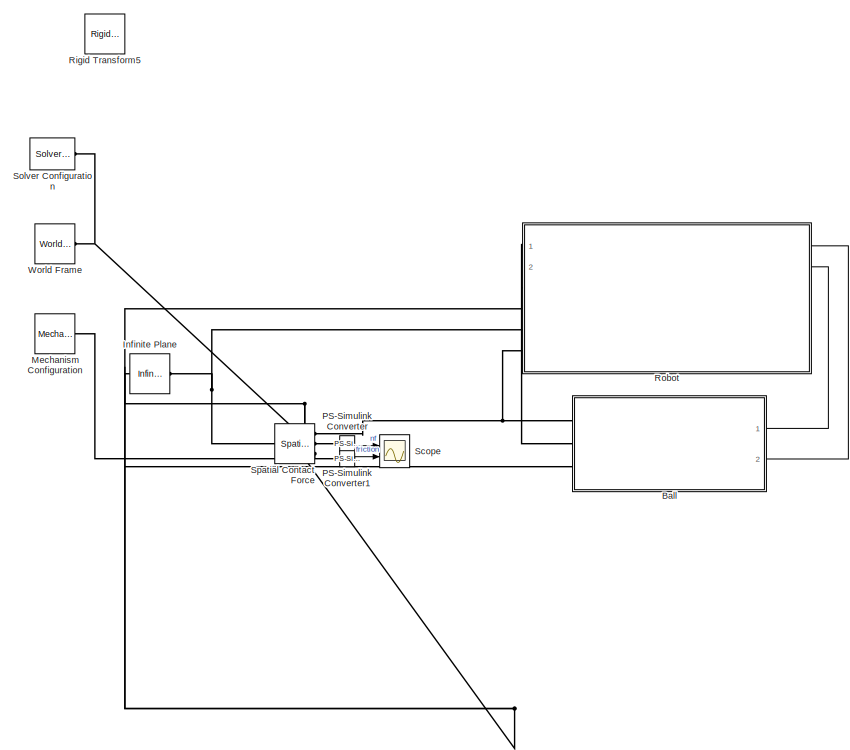
[diagram: root canvas - part 1/2, left side, full height]
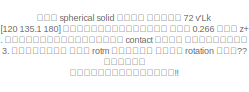
[diagram: root canvas - part 2/2, middle right region]
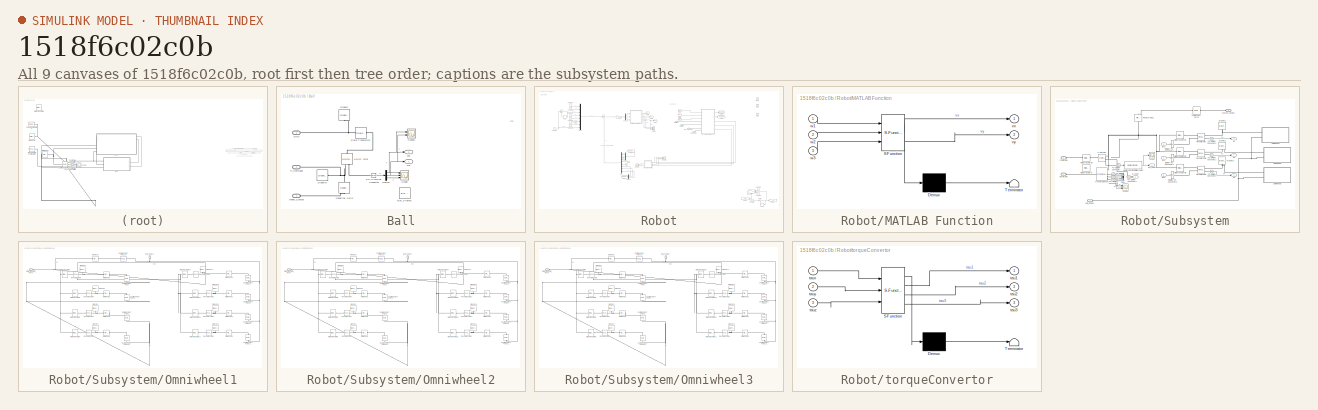
[diagram: thumbnail index - all 9 canvases of the model, root first then tree order]
MODEL slx_1518f6c02c0b
KIND model
CONFIG AbsTol = 1e-7
CONFIG EnableMultiTasking = off
CONFIG FixedStep = 0.01
CONFIG MaxStep = 1e-5
CONFIG MinStep = auto
CONFIG RelTol = 1e-8
CONFIG SampleTimeConstraint = Unconstrained
CONFIG SolverName = ode45
CONFIG StartTime = 0.0
CONFIG StopTime = 5
BLOCK [SubSystem] Ball
  Ports = [0, 2, 0, 0, 0, 3]
  RequestExecContextInheritance = off
BLOCK [Reference] Ball/6-DOF Joint  REF=sm_lib/Joints/6-DOF Joint
  NameLocation = left
  Ports = [0, 0, 0, 0, 0, 1, 2]
  SourceBlock = sm_lib/Joints/6-DOF Joint
  SourceProductBaseCode = MS
  SourceType = 6-DOF Joint
BLOCK [Reference] Ball/Ball_Frame1  REF=sm_lib/Body Elements/File Solid
  Commented = on
  NameLocation = right
  Ports = [0, 0, 0, 0, 0, 1, 1]
  SourceBlock = sm_lib/Body Elements/File Solid
  SourceProductBaseCode = MS
  SourceType = File Solid
BLOCK [Demux] Ball/Demux
  Outputs = 3
  Ports = [1, 3]
BLOCK [PMIOPort] Ball/GND
  Port = 3
  Side = Left
BLOCK [Reference] Ball/Graphic  REF=sm_lib/Body Elements/Graphic
  NameLocation = left
  Ports = [0, 0, 0, 0, 0, 0, 1]
  SourceBlock = sm_lib/Body Elements/Graphic
  SourceProductBaseCode = MS
  SourceType = Graphic
BLOCK [Reference] Ball/Graphic4  REF=sm_lib/Body Elements/Graphic
  Ports = [0, 0, 0, 0, 0, 0, 1]
  SourceBlock = sm_lib/Body Elements/Graphic
  SourceProductBaseCode = MS
  SourceType = Graphic
BLOCK [Reference] Ball/PS-Simulink Converter  REF=nesl_utility/PS-Simulink
Converter
  Ports = [0, 1, 0, 0, 0, 1]
  SourceBlock = nesl_utility/PS-Simulink\nConverter
  SourceProductBaseCode = PW,SS
  SourceType = PS-Simulink\nConverter
BLOCK [Reference] Ball/Rigid Transform3  REF=sm_lib/Frames and
Transforms/Rigid
Transform
  Ports = [0, 0, 0, 0, 0, 1, 1]
  SourceBlock = sm_lib/Frames and\nTransforms/Rigid\nTransform
  SourceProductBaseCode = MS
  SourceType = Rigid\nTransform
BLOCK [Scope] Ball/Scope
  Floating = off
  NumInputPorts = 3
  Ports = [3]
  ScopeSpecificationString = Simulink.scopes.TimeScopeBlockCfg('CurrentConfiguration', extmgr.ConfigurationSet(extmgr.Configuration('Core','General UI',true,'FigureColor',[0.941176470588235 0.941176470588235 0.941176470588235]),extmgr.Configuration('Core','Source UI',true),extmgr.Configuration('Sources','WiredSimulink',true,'DataLoggingVariableName','ScopeData1'),extmgr.Configuration('Visuals','Time Domain',true,'PlotType','L...<+1776ch>
BLOCK [Scope] Ball/Scope1
  Floating = off
  NumInputPorts = 2
  Ports = [2]
  ScopeSpecificationString = Simulink.scopes.TimeScopeBlockCfg('CurrentConfiguration', extmgr.ConfigurationSet(extmgr.Configuration('Core','General UI',true),extmgr.Configuration('Core','Source UI',true),extmgr.Configuration('Sources','WiredSimulink',true,'DataLoggingVariableName','ScopeData1'),extmgr.Configuration('Visuals','Time Domain',true),extmgr.Configuration('Tools','Plot Navigation',true),extmgr.Configuration('Tools',...<+40ch>  <repeated x3 — deduplicated; at blocks: Scope1, Scope>
BLOCK [Reference] Ball/Spherical Solid  REF=sm_lib/Body Elements/Spherical Solid
  NameLocation = right
  Ports = [0, 0, 0, 0, 0, 1, 1]
  SourceBlock = sm_lib/Body Elements/Spherical Solid
  SourceProductBaseCode = MS
  SourceType = Spherical Solid
BLOCK [PMIOPort] Ball/Wheel_Contact
  NameLocation = top
  Side = Left
BLOCK [PMIOPort] Ball/tf_fromrobot
  NameLocation = top
  Port = 2
  Side = Left
BLOCK [Outport] Ball/vxb
  Port = 2
BLOCK [Outport] Ball/vyb
BLOCK [Reference] Infinite Plane  REF=sm_lib/Curves and Surfaces/Infinite Plane
  Ports = [0, 0, 0, 0, 0, 1, 1]
  SourceBlock = sm_lib/Curves and Surfaces/Infinite Plane
  SourceProductBaseCode = MS
  SourceType = Infinite Plane
BLOCK [Reference] Mechanism Configuration  REF=sm_lib/Utilities/Mechanism
Configuration
  Ports = [0, 0, 0, 0, 0, 0, 1]
  SourceBlock = sm_lib/Utilities/Mechanism\nConfiguration
  SourceProductBaseCode = MS
  SourceType = Mechanism\nConfiguration
BLOCK [Reference] PS-Simulink Converter  REF=nesl_utility/PS-Simulink
Converter
  Ports = [0, 1, 0, 0, 0, 1]
  SourceBlock = nesl_utility/PS-Simulink\nConverter
  SourceProductBaseCode = PW,SS
  SourceType = PS-Simulink\nConverter
BLOCK [Reference] PS-Simulink Converter1  REF=nesl_utility/PS-Simulink
Converter
  Ports = [0, 1, 0, 0, 0, 1]
  SourceBlock = nesl_utility/PS-Simulink\nConverter
  SourceProductBaseCode = PW,SS
  SourceType = PS-Simulink\nConverter
BLOCK [Reference] Rigid Transform5  REF=sm_lib/Frames and
Transforms/Rigid
Transform
  Commented = on
  Ports = [0, 0, 0, 0, 0, 1, 1]
  SourceBlock = sm_lib/Frames and\nTransforms/Rigid\nTransform
  SourceProductBaseCode = MS
  SourceType = Rigid\nTransform
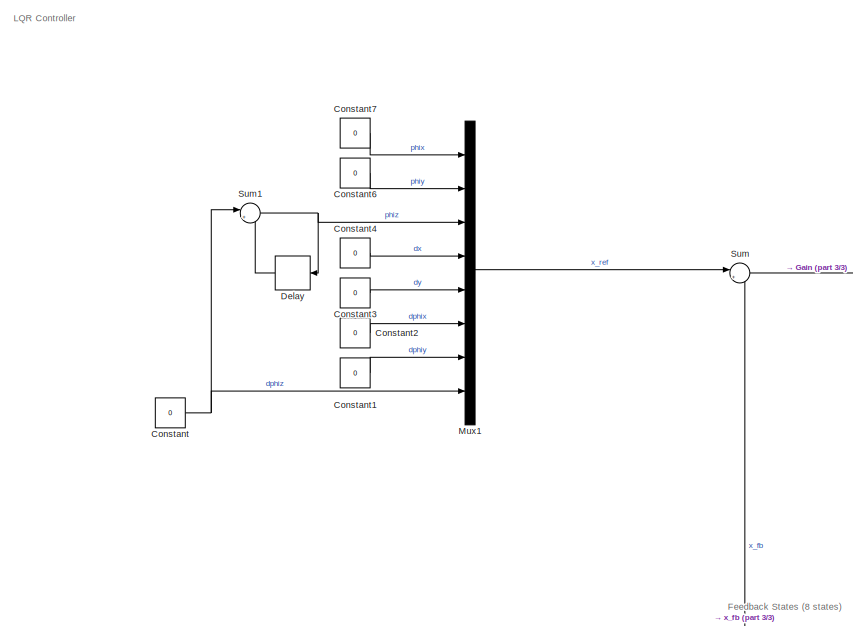
[diagram: Robot - part 1/3, top left region]
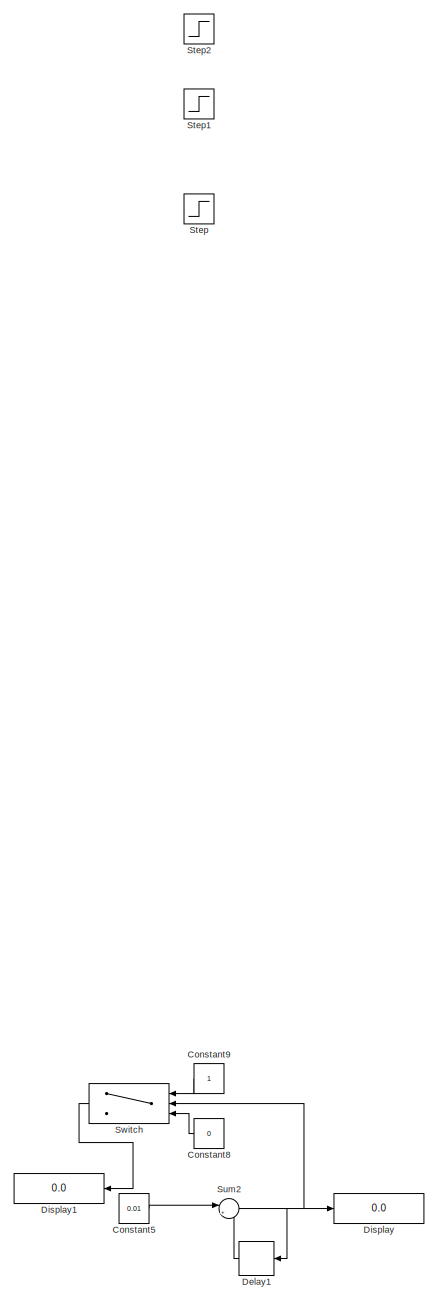
[diagram: Robot - part 2/3, right side, full height]
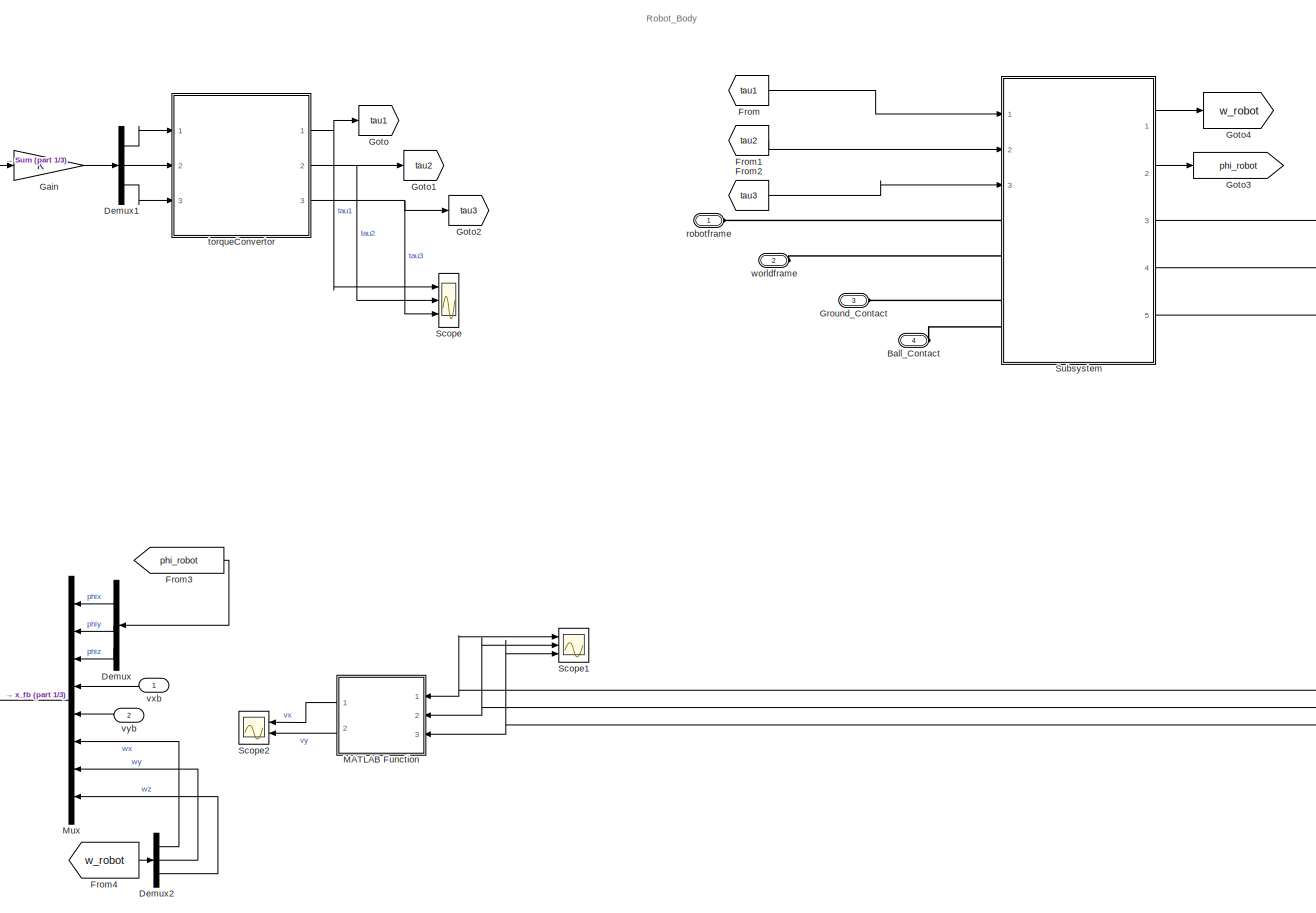
[diagram: Robot - part 3/3, central region]
BLOCK [SubSystem] Robot
  PortSchema = {"entries":[{"content":{"sides":[{"content":{"connectorIds":["LConn1","LConn2","LConn3","LConn4"]},"type":"ConnectorPlacement.EquallySpacedRectSide","uuid":"f85486a0-c418-4a9c-80fa-7308dff89607"},{"content":{"connectorIds":["In1","In2"],"side":"RIGHT"},"type":"ConnectorPlacement.EquallySpacedRectSide","uuid":"d5b09225-4c30-40eb-af55-3d62eb8d532d"},{"content":{"connectorIds":[],"side":"TOP"},"type"...<+275ch>
  Ports = [2, 0, 0, 0, 0, 4]
  RequestExecContextInheritance = off
BLOCK [PMIOPort] Robot/Ball_Contact
  Port = 4
  Side = Left
BLOCK [Constant] Robot/Constant
  Value = 0
BLOCK [Constant] Robot/Constant1
  Value = 0
BLOCK [Constant] Robot/Constant2
  Value = 0
BLOCK [Constant] Robot/Constant3
  Value = 0
BLOCK [Constant] Robot/Constant4
  Value = 0
BLOCK [Constant] Robot/Constant5
  Commented = on
  Value = 0.01
BLOCK [Constant] Robot/Constant6
  Value = 0
BLOCK [Constant] Robot/Constant7
  Value = 0
BLOCK [Constant] Robot/Constant8
  Commented = on
  NameLocation = top
  Value = 0
BLOCK [Constant] Robot/Constant9
  Commented = on
  NameLocation = top
BLOCK [Delay] Robot/Delay
  DelayLength = 1
  InputPortMap = u0
  NameLocation = top
  Ports = [1, 1]
  SampleTime = 1
BLOCK [Delay] Robot/Delay1
  Commented = on
  DelayLength = 1
  InputPortMap = u0
  NameLocation = top
  Ports = [1, 1]
  SampleTime = 0.01
BLOCK [Demux] Robot/Demux
  NameLocation = top
  Outputs = 3
  Ports = [1, 3]
BLOCK [Demux] Robot/Demux1
  Outputs = 3
  Ports = [1, 3]
BLOCK [Demux] Robot/Demux2
  Outputs = 3
  Ports = [1, 3]
BLOCK [Display] Robot/Display
  Commented = on
  Decimation = 1
  Ports = [1]
BLOCK [Display] Robot/Display1
  Commented = on
  Decimation = 1
  NameLocation = top
  Ports = [1]
BLOCK [From] Robot/From
  GotoTag = tau1
  NameLocation = top
BLOCK [From] Robot/From1
  GotoTag = tau2
  NameLocation = top
BLOCK [From] Robot/From2
  GotoTag = tau3
  NameLocation = top
BLOCK [From] Robot/From3
  GotoTag = phi_robot
BLOCK [From] Robot/From4
  GotoTag = w_robot
BLOCK [Gain] Robot/Gain
  Gain = K
  Multiplication = Matrix(K*u)
BLOCK [Goto] Robot/Goto
  GotoTag = tau1
BLOCK [Goto] Robot/Goto1
  GotoTag = tau2
BLOCK [Goto] Robot/Goto2
  GotoTag = tau3
BLOCK [Goto] Robot/Goto3
  GotoTag = phi_robot
BLOCK [Goto] Robot/Goto4
  GotoTag = w_robot
BLOCK [PMIOPort] Robot/Ground_Contact
  Port = 3
  Side = Left
BLOCK [SubSystem] Robot/MATLAB Function
  ErrorFcn = Stateflow.Translate.translate
  NameLocation = top
  PermitHierarchicalResolution = ExplicitOnly
  Ports = [3, 2]
  RequestExecContextInheritance = off
  SFBlockType = MATLAB Function
  TreatAsAtomicUnit = on
BLOCK [Demux] Robot/MATLAB Function/ Demux 
  Outputs = 1
  Ports = [1, 1]
BLOCK [S-Function] Robot/MATLAB Function/ SFunction 
  EnableBusSupport = on
  FunctionName = sf_sfun
  PortCounts = [3 3]
  Ports = [3, 3]
  SFcnIsStateOwnerBlock = off
  SFunctionDeploymentMode = off
  Tag = Stateflow S-Function 1
BLOCK [Terminator] Robot/MATLAB Function/ Terminator 
BLOCK [Outport] Robot/MATLAB Function/vx
BLOCK [Outport] Robot/MATLAB Function/vy
  Port = 2
BLOCK [Inport] Robot/MATLAB Function/w1
BLOCK [Inport] Robot/MATLAB Function/w2
  Port = 2
BLOCK [Inport] Robot/MATLAB Function/w3
  Port = 3
BLOCK [Mux] Robot/Mux
  DisplayOption = bar
  Inputs = 8
  NameLocation = top
  Ports = [8, 1]
BLOCK [Mux] Robot/Mux1
  DisplayOption = bar
  Inputs = 8
  Ports = [8, 1]
BLOCK [Scope] Robot/Scope
  Floating = off
  NumInputPorts = 3
  Ports = [3]
  ScopeSpecificationString = Simulink.scopes.TimeScopeBlockCfg('CurrentConfiguration', extmgr.ConfigurationSet(extmgr.Configuration('Core','General UI',true),extmgr.Configuration('Core','Source UI',true),extmgr.Configuration('Sources','WiredSimulink',true,'DataLoggingVariableName','ScopeData1'),extmgr.Configuration('Visuals','Time Domain',true,'SerializedDisplays',{struct('MinYLimReal','242.48168','MaxYLimReal','1413.37032','...<+1468ch>
BLOCK [Scope] Robot/Scope1
  Floating = off
  NumInputPorts = 3
  Ports = [3]
BLOCK [Scope] Robot/Scope2
  Floating = off
  NameLocation = top
  NumInputPorts = 2
  Ports = [2]
  ScopeSpecificationString = Simulink.scopes.TimeScopeBlockCfg('CurrentConfiguration', extmgr.ConfigurationSet(extmgr.Configuration('Core','General UI',true),extmgr.Configuration('Core','Source UI',true),extmgr.Configuration('Sources','WiredSimulink',true,'DataLoggingVariableName','ScopeData2'),extmgr.Configuration('Visuals','Time Domain',true),extmgr.Configuration('Tools','Plot Navigation',true),extmgr.Configuration('Tools',...<+40ch>
BLOCK [Step] Robot/Step
  After = 1.446
  Commented = on
  SampleTime = 0
  Time = 0.05
BLOCK [Step] Robot/Step1
  After = -1.446
  Commented = on
  SampleTime = 0
  Time = 0.05
BLOCK [Step] Robot/Step2
  After = 0
  Commented = on
  SampleTime = 0
  Time = 0.05
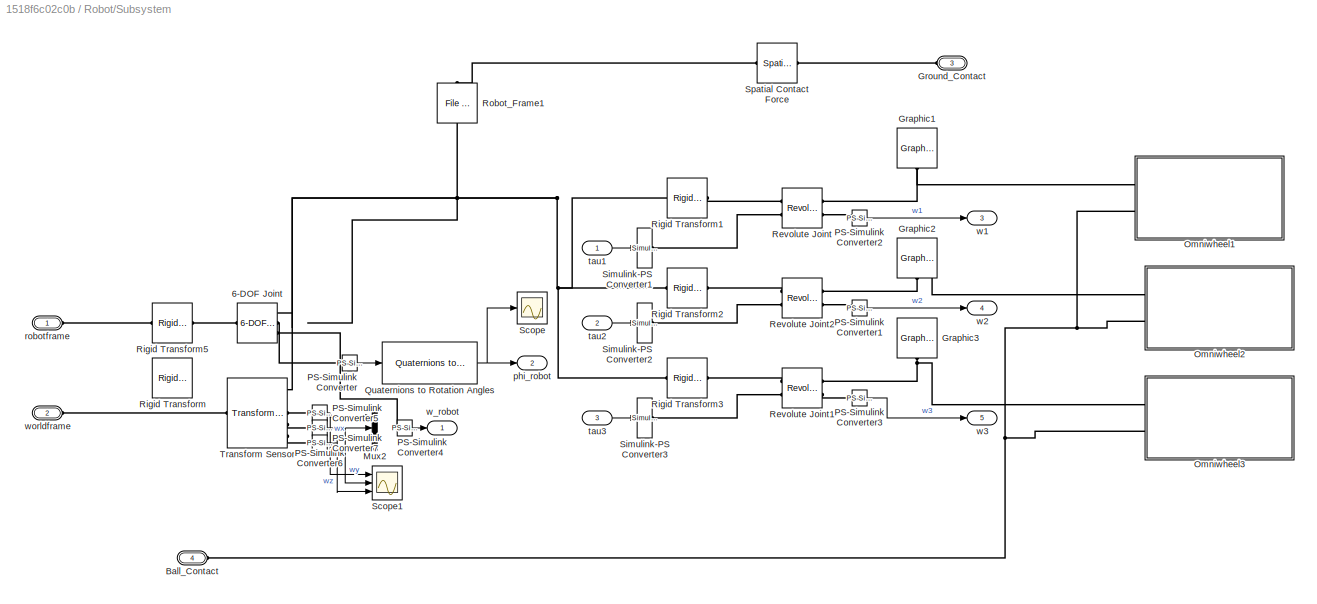
BLOCK [SubSystem] Robot/Subsystem
  Ports = [3, 5, 0, 0, 0, 4]
  RequestExecContextInheritance = off
BLOCK [Reference] Robot/Subsystem/6-DOF Joint  REF=sm_lib/Joints/6-DOF Joint
  Ports = [0, 0, 0, 0, 0, 1, 3]
  SourceBlock = sm_lib/Joints/6-DOF Joint
  SourceProductBaseCode = MS
  SourceType = 6-DOF Joint
BLOCK [PMIOPort] Robot/Subsystem/Ball_Contact
  Port = 4
  Side = Left
BLOCK [Reference] Robot/Subsystem/Graphic1  REF=sm_lib/Body Elements/Graphic
  NameLocation = left
  Ports = [0, 0, 0, 0, 0, 0, 1]
  SourceBlock = sm_lib/Body Elements/Graphic
  SourceProductBaseCode = MS
  SourceType = Graphic
BLOCK [Reference] Robot/Subsystem/Graphic2  REF=sm_lib/Body Elements/Graphic
  NameLocation = left
  Ports = [0, 0, 0, 0, 0, 0, 1]
  SourceBlock = sm_lib/Body Elements/Graphic
  SourceProductBaseCode = MS
  SourceType = Graphic
BLOCK [Reference] Robot/Subsystem/Graphic3  REF=sm_lib/Body Elements/Graphic
  NameLocation = left
  Ports = [0, 0, 0, 0, 0, 0, 1]
  SourceBlock = sm_lib/Body Elements/Graphic
  SourceProductBaseCode = MS
  SourceType = Graphic
BLOCK [PMIOPort] Robot/Subsystem/Ground_Contact
  NameLocation = top
  Port = 3
  Side = Left
BLOCK [Mux] Robot/Subsystem/Mux2
  Commented = on
  DisplayOption = bar
  Inputs = 3
  Ports = [3, 1]
BLOCK [SubSystem] Robot/Subsystem/Omniwheel1
  Ports = [0, 0, 0, 0, 0, 2]
  RequestExecContextInheritance = off
BLOCK [PMIOPort] Robot/Subsystem/Omniwheel1/Ball_Contact
  NameLocation = left
  Port = 2
  Side = Left
BLOCK [Reference] Robot/Subsystem/Omniwheel1/Graphic1  REF=sm_lib/Body Elements/Graphic
  Commented = on
  NameLocation = left
  Ports = [0, 0, 0, 0, 0, 0, 1]
  SourceBlock = sm_lib/Body Elements/Graphic
  SourceProductBaseCode = MS
  SourceType = Graphic
BLOCK [Reference] Robot/Subsystem/Omniwheel1/Graphic10  REF=sm_lib/Body Elements/Graphic
  Commented = on
  NameLocation = left
  Ports = [0, 0, 0, 0, 0, 0, 1]
  SourceBlock = sm_lib/Body Elements/Graphic
  SourceProductBaseCode = MS
  SourceType = Graphic
BLOCK [Reference] Robot/Subsystem/Omniwheel1/Graphic11  REF=sm_lib/Body Elements/Graphic
  Commented = on
  NameLocation = left
  Ports = [0, 0, 0, 0, 0, 0, 1]
  SourceBlock = sm_lib/Body Elements/Graphic
  SourceProductBaseCode = MS
  SourceType = Graphic
BLOCK [Reference] Robot/Subsystem/Omniwheel1/Graphic14  REF=sm_lib/Body Elements/Graphic
  Commented = on
  NameLocation = left
  Ports = [0, 0, 0, 0, 0, 0, 1]
  SourceBlock = sm_lib/Body Elements/Graphic
  SourceProductBaseCode = MS
  SourceType = Graphic
BLOCK [Reference] Robot/Subsystem/Omniwheel1/Graphic15  REF=sm_lib/Body Elements/Graphic
  Commented = on
  NameLocation = left
  Ports = [0, 0, 0, 0, 0, 0, 1]
  SourceBlock = sm_lib/Body Elements/Graphic
  SourceProductBaseCode = MS
  SourceType = Graphic
BLOCK [Reference] Robot/Subsystem/Omniwheel1/Graphic2  REF=sm_lib/Body Elements/Graphic
  Commented = on
  NameLocation = left
  Ports = [0, 0, 0, 0, 0, 0, 1]
  SourceBlock = sm_lib/Body Elements/Graphic
  SourceProductBaseCode = MS
  SourceType = Graphic
BLOCK [Reference] Robot/Subsystem/Omniwheel1/Graphic5  REF=sm_lib/Body Elements/Graphic
  Commented = on
  NameLocation = left
  Ports = [0, 0, 0, 0, 0, 0, 1]
  SourceBlock = sm_lib/Body Elements/Graphic
  SourceProductBaseCode = MS
  SourceType = Graphic
BLOCK [Reference] Robot/Subsystem/Omniwheel1/Graphic6  REF=sm_lib/Body Elements/Graphic
  Commented = on
  NameLocation = left
  Ports = [0, 0, 0, 0, 0, 0, 1]
  SourceBlock = sm_lib/Body Elements/Graphic
  SourceProductBaseCode = MS
  SourceType = Graphic
BLOCK [Reference] Robot/Subsystem/Omniwheel1/Omnibody  REF=sm_lib/Body Elements/File Solid
  NameLocation = top
  Ports = [0, 0, 0, 0, 0, 1, 1]
  SourceBlock = sm_lib/Body Elements/File Solid
  SourceProductBaseCode = MS
  SourceType = File Solid
BLOCK [Reference] Robot/Subsystem/Omniwheel1/Revolute Joint1  REF=sm_lib/Joints/Revolute Joint
  Ports = [0, 0, 0, 0, 0, 1, 1]
  SourceBlock = sm_lib/Joints/Revolute Joint
  SourceProductBaseCode = MS
  SourceType = Revolute Joint
BLOCK [Reference] Robot/Subsystem/Omniwheel1/Revolute Joint10  REF=sm_lib/Joints/Revolute Joint
  Ports = [0, 0, 0, 0, 0, 1, 1]
  SourceBlock = sm_lib/Joints/Revolute Joint
  SourceProductBaseCode = MS
  SourceType = Revolute Joint
BLOCK [Reference] Robot/Subsystem/Omniwheel1/Revolute Joint11  REF=sm_lib/Joints/Revolute Joint
  Ports = [0, 0, 0, 0, 0, 1, 1]
  SourceBlock = sm_lib/Joints/Revolute Joint
  SourceProductBaseCode = MS
  SourceType = Revolute Joint
BLOCK [Reference] Robot/Subsystem/Omniwheel1/Revolute Joint12  REF=sm_lib/Joints/Revolute Joint
  Ports = [0, 0, 0, 0, 0, 1, 1]
  SourceBlock = sm_lib/Joints/Revolute Joint
  SourceProductBaseCode = MS
  SourceType = Revolute Joint
BLOCK [Reference] Robot/Subsystem/Omniwheel1/Revolute Joint13  REF=sm_lib/Joints/Revolute Joint
  Ports = [0, 0, 0, 0, 0, 1, 1]
  SourceBlock = sm_lib/Joints/Revolute Joint
  SourceProductBaseCode = MS
  SourceType = Revolute Joint
BLOCK [Reference] Robot/Subsystem/Omniwheel1/Revolute Joint2  REF=sm_lib/Joints/Revolute Joint
  Ports = [0, 0, 0, 0, 0, 1, 1]
  SourceBlock = sm_lib/Joints/Revolute Joint
  SourceProductBaseCode = MS
  SourceType = Revolute Joint
BLOCK [Reference] Robot/Subsystem/Omniwheel1/Revolute Joint3  REF=sm_lib/Joints/Revolute Joint
  Ports = [0, 0, 0, 0, 0, 1, 1]
  SourceBlock = sm_lib/Joints/Revolute Joint
  SourceProductBaseCode = MS
  SourceType = Revolute Joint
BLOCK [Reference] Robot/Subsystem/Omniwheel1/Revolute Joint4  REF=sm_lib/Joints/Revolute Joint
  Ports = [0, 0, 0, 0, 0, 1, 1]
  SourceBlock = sm_lib/Joints/Revolute Joint
  SourceProductBaseCode = MS
  SourceType = Revolute Joint
BLOCK [Reference] Robot/Subsystem/Omniwheel1/Rigid Transform1  REF=sm_lib/Frames and
Transforms/Rigid
Transform
  Ports = [0, 0, 0, 0, 0, 1, 1]
  SourceBlock = sm_lib/Frames and\nTransforms/Rigid\nTransform
  SourceProductBaseCode = MS
  SourceType = Rigid\nTransform
BLOCK [Reference] Robot/Subsystem/Omniwheel1/Rigid Transform10  REF=sm_lib/Frames and
Transforms/Rigid
Transform
  Ports = [0, 0, 0, 0, 0, 1, 1]
  SourceBlock = sm_lib/Frames and\nTransforms/Rigid\nTransform
  SourceProductBaseCode = MS
  SourceType = Rigid\nTransform
BLOCK [Reference] Robot/Subsystem/Omniwheel1/Rigid Transform11  REF=sm_lib/Frames and
Transforms/Rigid
Transform
  Ports = [0, 0, 0, 0, 0, 1, 1]
  SourceBlock = sm_lib/Frames and\nTransforms/Rigid\nTransform
  SourceProductBaseCode = MS
  SourceType = Rigid\nTransform
BLOCK [Reference] Robot/Subsystem/Omniwheel1/Rigid Transform14  REF=sm_lib/Frames and
Transforms/Rigid
Transform
  Ports = [0, 0, 0, 0, 0, 1, 1]
  SourceBlock = sm_lib/Frames and\nTransforms/Rigid\nTransform
  SourceProductBaseCode = MS
  SourceType = Rigid\nTransform
BLOCK [Reference] Robot/Subsystem/Omniwheel1/Rigid Transform15  REF=sm_lib/Frames and
Transforms/Rigid
Transform
  Ports = [0, 0, 0, 0, 0, 1, 1]
  SourceBlock = sm_lib/Frames and\nTransforms/Rigid\nTransform
  SourceProductBaseCode = MS
  SourceType = Rigid\nTransform
BLOCK [Reference] Robot/Subsystem/Omniwheel1/Rigid Transform2  REF=sm_lib/Frames and
Transforms/Rigid
Transform
  Ports = [0, 0, 0, 0, 0, 1, 1]
  SourceBlock = sm_lib/Frames and\nTransforms/Rigid\nTransform
  SourceProductBaseCode = MS
  SourceType = Rigid\nTransform
BLOCK [Reference] Robot/Subsystem/Omniwheel1/Rigid Transform5  REF=sm_lib/Frames and
Transforms/Rigid
Transform
  Ports = [0, 0, 0, 0, 0, 1, 1]
  SourceBlock = sm_lib/Frames and\nTransforms/Rigid\nTransform
  SourceProductBaseCode = MS
  SourceType = Rigid\nTransform
BLOCK [Reference] Robot/Subsystem/Omniwheel1/Rigid Transform6  REF=sm_lib/Frames and
Transforms/Rigid
Transform
  Ports = [0, 0, 0, 0, 0, 1, 1]
  SourceBlock = sm_lib/Frames and\nTransforms/Rigid\nTransform
  SourceProductBaseCode = MS
  SourceType = Rigid\nTransform
BLOCK [PMIOPort] Robot/Subsystem/Omniwheel1/Rigid Transform_wheel
  Side = Left
BLOCK [Reference] Robot/Subsystem/Omniwheel1/Spatial Contact Force  REF=sm_lib/Forces and
Torques/Spatial
Contact Force
  NameLocation = right
  Ports = [0, 0, 0, 0, 0, 1, 1]
  SourceBlock = sm_lib/Forces and\nTorques/Spatial\nContact Force
  SourceProductBaseCode = MS
  SourceType = Spatial\nContact Force
BLOCK [Reference] Robot/Subsystem/Omniwheel1/Spatial Contact Force1  REF=sm_lib/Forces and
Torques/Spatial
Contact Force
  NameLocation = right
  Ports = [0, 0, 0, 0, 0, 1, 1]
  SourceBlock = sm_lib/Forces and\nTorques/Spatial\nContact Force
  SourceProductBaseCode = MS
  SourceType = Spatial\nContact Force
BLOCK [Reference] Robot/Subsystem/Omniwheel1/Spatial Contact Force10  REF=sm_lib/Forces and
Torques/Spatial
Contact Force
  NameLocation = right
  Ports = [0, 0, 0, 0, 0, 1, 1]
  SourceBlock = sm_lib/Forces and\nTorques/Spatial\nContact Force
  SourceProductBaseCode = MS
  SourceType = Spatial\nContact Force
BLOCK [Reference] Robot/Subsystem/Omniwheel1/Spatial Contact Force11  REF=sm_lib/Forces and
Torques/Spatial
Contact Force
  NameLocation = right
  Ports = [0, 0, 0, 0, 0, 1, 1]
  SourceBlock = sm_lib/Forces and\nTorques/Spatial\nContact Force
  SourceProductBaseCode = MS
  SourceType = Spatial\nContact Force
BLOCK [Reference] Robot/Subsystem/Omniwheel1/Spatial Contact Force18  REF=sm_lib/Forces and
Torques/Spatial
Contact Force
  NameLocation = top
  Ports = [0, 0, 0, 0, 0, 1, 1]
  SourceBlock = sm_lib/Forces and\nTorques/Spatial\nContact Force
  SourceProductBaseCode = MS
  SourceType = Spatial\nContact Force
BLOCK [Reference] Robot/Subsystem/Omniwheel1/Spatial Contact Force19  REF=sm_lib/Forces and
Torques/Spatial
Contact Force
  NameLocation = right
  Ports = [0, 0, 0, 0, 0, 1, 1]
  SourceBlock = sm_lib/Forces and\nTorques/Spatial\nContact Force
  SourceProductBaseCode = MS
  SourceType = Spatial\nContact Force
BLOCK [Reference] Robot/Subsystem/Omniwheel1/Spatial Contact Force2  REF=sm_lib/Forces and
Torques/Spatial
Contact Force
  NameLocation = right
  Ports = [0, 0, 0, 0, 0, 1, 1]
  SourceBlock = sm_lib/Forces and\nTorques/Spatial\nContact Force
  SourceProductBaseCode = MS
  SourceType = Spatial\nContact Force
BLOCK [Reference] Robot/Subsystem/Omniwheel1/Spatial Contact Force3  REF=sm_lib/Forces and
Torques/Spatial
Contact Force
  NameLocation = right
  Ports = [0, 0, 0, 0, 0, 1, 1]
  SourceBlock = sm_lib/Forces and\nTorques/Spatial\nContact Force
  SourceProductBaseCode = MS
  SourceType = Spatial\nContact Force
BLOCK [Reference] Robot/Subsystem/Omniwheel1/Spatial Contact Force9  REF=sm_lib/Forces and
Torques/Spatial
Contact Force
  NameLocation = right
  Ports = [0, 0, 0, 0, 0, 1, 1]
  SourceBlock = sm_lib/Forces and\nTorques/Spatial\nContact Force
  SourceProductBaseCode = MS
  SourceType = Spatial\nContact Force
BLOCK [Reference] Robot/Subsystem/Omniwheel1/miniwheel1  REF=sm_lib/Body Elements/File Solid
  NameLocation = top
  Ports = [0, 0, 0, 0, 0, 1, 1]
  SourceBlock = sm_lib/Body Elements/File Solid
  SourceProductBaseCode = MS
  SourceType = File Solid
BLOCK [Reference] Robot/Subsystem/Omniwheel1/miniwheel10  REF=sm_lib/Body Elements/File Solid
  NameLocation = top
  Ports = [0, 0, 0, 0, 0, 1, 1]
  SourceBlock = sm_lib/Body Elements/File Solid
  SourceProductBaseCode = MS
  SourceType = File Solid
BLOCK [Reference] Robot/Subsystem/Omniwheel1/miniwheel11  REF=sm_lib/Body Elements/File Solid
  NameLocation = top
  Ports = [0, 0, 0, 0, 0, 1, 1]
  SourceBlock = sm_lib/Body Elements/File Solid
  SourceProductBaseCode = MS
  SourceType = File Solid
BLOCK [Reference] Robot/Subsystem/Omniwheel1/miniwheel12  REF=sm_lib/Body Elements/File Solid
  NameLocation = top
  Ports = [0, 0, 0, 0, 0, 1, 1]
  SourceBlock = sm_lib/Body Elements/File Solid
  SourceProductBaseCode = MS
  SourceType = File Solid
BLOCK [Reference] Robot/Subsystem/Omniwheel1/miniwheel13  REF=sm_lib/Body Elements/File Solid
  NameLocation = top
  Ports = [0, 0, 0, 0, 0, 1, 1]
  SourceBlock = sm_lib/Body Elements/File Solid
  SourceProductBaseCode = MS
  SourceType = File Solid
BLOCK [Reference] Robot/Subsystem/Omniwheel1/miniwheel2  REF=sm_lib/Body Elements/File Solid
  NameLocation = top
  Ports = [0, 0, 0, 0, 0, 1, 1]
  SourceBlock = sm_lib/Body Elements/File Solid
  SourceProductBaseCode = MS
  SourceType = File Solid
BLOCK [Reference] Robot/Subsystem/Omniwheel1/miniwheel3  REF=sm_lib/Body Elements/File Solid
  NameLocation = top
  Ports = [0, 0, 0, 0, 0, 1, 1]
  SourceBlock = sm_lib/Body Elements/File Solid
  SourceProductBaseCode = MS
  SourceType = File Solid
BLOCK [Reference] Robot/Subsystem/Omniwheel1/miniwheel4  REF=sm_lib/Body Elements/File Solid
  NameLocation = top
  Ports = [0, 0, 0, 0, 0, 1, 1]
  SourceBlock = sm_lib/Body Elements/File Solid
  SourceProductBaseCode = MS
  SourceType = File Solid
BLOCK [SubSystem] Robot/Subsystem/Omniwheel2
  Ports = [0, 0, 0, 0, 0, 2]
  RequestExecContextInheritance = off
BLOCK [PMIOPort] Robot/Subsystem/Omniwheel2/Ball_Contact
  NameLocation = left
  Port = 2
  Side = Left
BLOCK [Reference] Robot/Subsystem/Omniwheel2/Graphic1  REF=sm_lib/Body Elements/Graphic
  Commented = on
  NameLocation = left
  Ports = [0, 0, 0, 0, 0, 0, 1]
  SourceBlock = sm_lib/Body Elements/Graphic
  SourceProductBaseCode = MS
  SourceType = Graphic
BLOCK [Reference] Robot/Subsystem/Omniwheel2/Graphic10  REF=sm_lib/Body Elements/Graphic
  Commented = on
  NameLocation = left
  Ports = [0, 0, 0, 0, 0, 0, 1]
  SourceBlock = sm_lib/Body Elements/Graphic
  SourceProductBaseCode = MS
  SourceType = Graphic
BLOCK [Reference] Robot/Subsystem/Omniwheel2/Graphic11  REF=sm_lib/Body Elements/Graphic
  Commented = on
  NameLocation = left
  Ports = [0, 0, 0, 0, 0, 0, 1]
  SourceBlock = sm_lib/Body Elements/Graphic
  SourceProductBaseCode = MS
  SourceType = Graphic
BLOCK [Reference] Robot/Subsystem/Omniwheel2/Graphic14  REF=sm_lib/Body Elements/Graphic
  Commented = on
  NameLocation = left
  Ports = [0, 0, 0, 0, 0, 0, 1]
  SourceBlock = sm_lib/Body Elements/Graphic
  SourceProductBaseCode = MS
  SourceType = Graphic
BLOCK [Reference] Robot/Subsystem/Omniwheel2/Graphic15  REF=sm_lib/Body Elements/Graphic
  Commented = on
  NameLocation = left
  Ports = [0, 0, 0, 0, 0, 0, 1]
  SourceBlock = sm_lib/Body Elements/Graphic
  SourceProductBaseCode = MS
  SourceType = Graphic
BLOCK [Reference] Robot/Subsystem/Omniwheel2/Graphic2  REF=sm_lib/Body Elements/Graphic
  Commented = on
  NameLocation = left
  Ports = [0, 0, 0, 0, 0, 0, 1]
  SourceBlock = sm_lib/Body Elements/Graphic
  SourceProductBaseCode = MS
  SourceType = Graphic
BLOCK [Reference] Robot/Subsystem/Omniwheel2/Graphic5  REF=sm_lib/Body Elements/Graphic
  Commented = on
  NameLocation = left
  Ports = [0, 0, 0, 0, 0, 0, 1]
  SourceBlock = sm_lib/Body Elements/Graphic
  SourceProductBaseCode = MS
  SourceType = Graphic
BLOCK [Reference] Robot/Subsystem/Omniwheel2/Graphic6  REF=sm_lib/Body Elements/Graphic
  Commented = on
  NameLocation = left
  Ports = [0, 0, 0, 0, 0, 0, 1]
  SourceBlock = sm_lib/Body Elements/Graphic
  SourceProductBaseCode = MS
  SourceType = Graphic
BLOCK [Reference] Robot/Subsystem/Omniwheel2/Omnibody  REF=sm_lib/Body Elements/File Solid
  NameLocation = top
  Ports = [0, 0, 0, 0, 0, 1, 1]
  SourceBlock = sm_lib/Body Elements/File Solid
  SourceProductBaseCode = MS
  SourceType = File Solid
BLOCK [Reference] Robot/Subsystem/Omniwheel2/Revolute Joint1  REF=sm_lib/Joints/Revolute Joint
  Ports = [0, 0, 0, 0, 0, 1, 1]
  SourceBlock = sm_lib/Joints/Revolute Joint
  SourceProductBaseCode = MS
  SourceType = Revolute Joint
BLOCK [Reference] Robot/Subsystem/Omniwheel2/Revolute Joint10  REF=sm_lib/Joints/Revolute Joint
  Ports = [0, 0, 0, 0, 0, 1, 1]
  SourceBlock = sm_lib/Joints/Revolute Joint
  SourceProductBaseCode = MS
  SourceType = Revolute Joint
BLOCK [Reference] Robot/Subsystem/Omniwheel2/Revolute Joint11  REF=sm_lib/Joints/Revolute Joint
  Ports = [0, 0, 0, 0, 0, 1, 1]
  SourceBlock = sm_lib/Joints/Revolute Joint
  SourceProductBaseCode = MS
  SourceType = Revolute Joint
BLOCK [Reference] Robot/Subsystem/Omniwheel2/Revolute Joint12  REF=sm_lib/Joints/Revolute Joint
  Ports = [0, 0, 0, 0, 0, 1, 1]
  SourceBlock = sm_lib/Joints/Revolute Joint
  SourceProductBaseCode = MS
  SourceType = Revolute Joint
BLOCK [Reference] Robot/Subsystem/Omniwheel2/Revolute Joint13  REF=sm_lib/Joints/Revolute Joint
  Ports = [0, 0, 0, 0, 0, 1, 1]
  SourceBlock = sm_lib/Joints/Revolute Joint
  SourceProductBaseCode = MS
  SourceType = Revolute Joint
BLOCK [Reference] Robot/Subsystem/Omniwheel2/Revolute Joint2  REF=sm_lib/Joints/Revolute Joint
  Ports = [0, 0, 0, 0, 0, 1, 1]
  SourceBlock = sm_lib/Joints/Revolute Joint
  SourceProductBaseCode = MS
  SourceType = Revolute Joint
BLOCK [Reference] Robot/Subsystem/Omniwheel2/Revolute Joint3  REF=sm_lib/Joints/Revolute Joint
  Ports = [0, 0, 0, 0, 0, 1, 1]
  SourceBlock = sm_lib/Joints/Revolute Joint
  SourceProductBaseCode = MS
  SourceType = Revolute Joint
BLOCK [Reference] Robot/Subsystem/Omniwheel2/Revolute Joint4  REF=sm_lib/Joints/Revolute Joint
  Ports = [0, 0, 0, 0, 0, 1, 1]
  SourceBlock = sm_lib/Joints/Revolute Joint
  SourceProductBaseCode = MS
  SourceType = Revolute Joint
BLOCK [Reference] Robot/Subsystem/Omniwheel2/Rigid Transform1  REF=sm_lib/Frames and
Transforms/Rigid
Transform
  Ports = [0, 0, 0, 0, 0, 1, 1]
  SourceBlock = sm_lib/Frames and\nTransforms/Rigid\nTransform
  SourceProductBaseCode = MS
  SourceType = Rigid\nTransform
BLOCK [Reference] Robot/Subsystem/Omniwheel2/Rigid Transform10  REF=sm_lib/Frames and
Transforms/Rigid
Transform
  Ports = [0, 0, 0, 0, 0, 1, 1]
  SourceBlock = sm_lib/Frames and\nTransforms/Rigid\nTransform
  SourceProductBaseCode = MS
  SourceType = Rigid\nTransform
BLOCK [Reference] Robot/Subsystem/Omniwheel2/Rigid Transform11  REF=sm_lib/Frames and
Transforms/Rigid
Transform
  Ports = [0, 0, 0, 0, 0, 1, 1]
  SourceBlock = sm_lib/Frames and\nTransforms/Rigid\nTransform
  SourceProductBaseCode = MS
  SourceType = Rigid\nTransform
BLOCK [Reference] Robot/Subsystem/Omniwheel2/Rigid Transform14  REF=sm_lib/Frames and
Transforms/Rigid
Transform
  Ports = [0, 0, 0, 0, 0, 1, 1]
  SourceBlock = sm_lib/Frames and\nTransforms/Rigid\nTransform
  SourceProductBaseCode = MS
  SourceType = Rigid\nTransform
BLOCK [Reference] Robot/Subsystem/Omniwheel2/Rigid Transform15  REF=sm_lib/Frames and
Transforms/Rigid
Transform
  Ports = [0, 0, 0, 0, 0, 1, 1]
  SourceBlock = sm_lib/Frames and\nTransforms/Rigid\nTransform
  SourceProductBaseCode = MS
  SourceType = Rigid\nTransform
BLOCK [Reference] Robot/Subsystem/Omniwheel2/Rigid Transform2  REF=sm_lib/Frames and
Transforms/Rigid
Transform
  Ports = [0, 0, 0, 0, 0, 1, 1]
  SourceBlock = sm_lib/Frames and\nTransforms/Rigid\nTransform
  SourceProductBaseCode = MS
  SourceType = Rigid\nTransform
BLOCK [Reference] Robot/Subsystem/Omniwheel2/Rigid Transform5  REF=sm_lib/Frames and
Transforms/Rigid
Transform
  Ports = [0, 0, 0, 0, 0, 1, 1]
  SourceBlock = sm_lib/Frames and\nTransforms/Rigid\nTransform
  SourceProductBaseCode = MS
  SourceType = Rigid\nTransform
BLOCK [Reference] Robot/Subsystem/Omniwheel2/Rigid Transform6  REF=sm_lib/Frames and
Transforms/Rigid
Transform
  Ports = [0, 0, 0, 0, 0, 1, 1]
  SourceBlock = sm_lib/Frames and\nTransforms/Rigid\nTransform
  SourceProductBaseCode = MS
  SourceType = Rigid\nTransform
BLOCK [PMIOPort] Robot/Subsystem/Omniwheel2/Rigid Transform_wheel
  Side = Left
BLOCK [Reference] Robot/Subsystem/Omniwheel2/Spatial Contact Force  REF=sm_lib/Forces and
Torques/Spatial
Contact Force
  NameLocation = right
  Ports = [0, 0, 0, 0, 0, 1, 1]
  SourceBlock = sm_lib/Forces and\nTorques/Spatial\nContact Force
  SourceProductBaseCode = MS
  SourceType = Spatial\nContact Force
BLOCK [Reference] Robot/Subsystem/Omniwheel2/Spatial Contact Force1  REF=sm_lib/Forces and
Torques/Spatial
Contact Force
  NameLocation = right
  Ports = [0, 0, 0, 0, 0, 1, 1]
  SourceBlock = sm_lib/Forces and\nTorques/Spatial\nContact Force
  SourceProductBaseCode = MS
  SourceType = Spatial\nContact Force
BLOCK [Reference] Robot/Subsystem/Omniwheel2/Spatial Contact Force10  REF=sm_lib/Forces and
Torques/Spatial
Contact Force
  NameLocation = right
  Ports = [0, 0, 0, 0, 0, 1, 1]
  SourceBlock = sm_lib/Forces and\nTorques/Spatial\nContact Force
  SourceProductBaseCode = MS
  SourceType = Spatial\nContact Force
BLOCK [Reference] Robot/Subsystem/Omniwheel2/Spatial Contact Force11  REF=sm_lib/Forces and
Torques/Spatial
Contact Force
  NameLocation = right
  Ports = [0, 0, 0, 0, 0, 1, 1]
  SourceBlock = sm_lib/Forces and\nTorques/Spatial\nContact Force
  SourceProductBaseCode = MS
  SourceType = Spatial\nContact Force
BLOCK [Reference] Robot/Subsystem/Omniwheel2/Spatial Contact Force18  REF=sm_lib/Forces and
Torques/Spatial
Contact Force
  NameLocation = top
  Ports = [0, 0, 0, 0, 0, 1, 1]
  SourceBlock = sm_lib/Forces and\nTorques/Spatial\nContact Force
  SourceProductBaseCode = MS
  SourceType = Spatial\nContact Force
BLOCK [Reference] Robot/Subsystem/Omniwheel2/Spatial Contact Force19  REF=sm_lib/Forces and
Torques/Spatial
Contact Force
  NameLocation = right
  Ports = [0, 0, 0, 0, 0, 1, 1]
  SourceBlock = sm_lib/Forces and\nTorques/Spatial\nContact Force
  SourceProductBaseCode = MS
  SourceType = Spatial\nContact Force
BLOCK [Reference] Robot/Subsystem/Omniwheel2/Spatial Contact Force2  REF=sm_lib/Forces and
Torques/Spatial
Contact Force
  NameLocation = right
  Ports = [0, 0, 0, 0, 0, 1, 1]
  SourceBlock = sm_lib/Forces and\nTorques/Spatial\nContact Force
  SourceProductBaseCode = MS
  SourceType = Spatial\nContact Force
BLOCK [Reference] Robot/Subsystem/Omniwheel2/Spatial Contact Force3  REF=sm_lib/Forces and
Torques/Spatial
Contact Force
  NameLocation = right
  Ports = [0, 0, 0, 0, 0, 1, 1]
  SourceBlock = sm_lib/Forces and\nTorques/Spatial\nContact Force
  SourceProductBaseCode = MS
  SourceType = Spatial\nContact Force
BLOCK [Reference] Robot/Subsystem/Omniwheel2/Spatial Contact Force9  REF=sm_lib/Forces and
Torques/Spatial
Contact Force
  NameLocation = right
  Ports = [0, 0, 0, 0, 0, 1, 1]
  SourceBlock = sm_lib/Forces and\nTorques/Spatial\nContact Force
  SourceProductBaseCode = MS
  SourceType = Spatial\nContact Force
BLOCK [Reference] Robot/Subsystem/Omniwheel2/miniwheel1  REF=sm_lib/Body Elements/File Solid
  NameLocation = top
  Ports = [0, 0, 0, 0, 0, 1, 1]
  SourceBlock = sm_lib/Body Elements/File Solid
  SourceProductBaseCode = MS
  SourceType = File Solid
BLOCK [Reference] Robot/Subsystem/Omniwheel2/miniwheel10  REF=sm_lib/Body Elements/File Solid
  NameLocation = top
  Ports = [0, 0, 0, 0, 0, 1, 1]
  SourceBlock = sm_lib/Body Elements/File Solid
  SourceProductBaseCode = MS
  SourceType = File Solid
BLOCK [Reference] Robot/Subsystem/Omniwheel2/miniwheel11  REF=sm_lib/Body Elements/File Solid
  NameLocation = top
  Ports = [0, 0, 0, 0, 0, 1, 1]
  SourceBlock = sm_lib/Body Elements/File Solid
  SourceProductBaseCode = MS
  SourceType = File Solid
BLOCK [Reference] Robot/Subsystem/Omniwheel2/miniwheel12  REF=sm_lib/Body Elements/File Solid
  NameLocation = top
  Ports = [0, 0, 0, 0, 0, 1, 1]
  SourceBlock = sm_lib/Body Elements/File Solid
  SourceProductBaseCode = MS
  SourceType = File Solid
BLOCK [Reference] Robot/Subsystem/Omniwheel2/miniwheel13  REF=sm_lib/Body Elements/File Solid
  NameLocation = top
  Ports = [0, 0, 0, 0, 0, 1, 1]
  SourceBlock = sm_lib/Body Elements/File Solid
  SourceProductBaseCode = MS
  SourceType = File Solid
BLOCK [Reference] Robot/Subsystem/Omniwheel2/miniwheel2  REF=sm_lib/Body Elements/File Solid
  NameLocation = top
  Ports = [0, 0, 0, 0, 0, 1, 1]
  SourceBlock = sm_lib/Body Elements/File Solid
  SourceProductBaseCode = MS
  SourceType = File Solid
BLOCK [Reference] Robot/Subsystem/Omniwheel2/miniwheel3  REF=sm_lib/Body Elements/File Solid
  NameLocation = top
  Ports = [0, 0, 0, 0, 0, 1, 1]
  SourceBlock = sm_lib/Body Elements/File Solid
  SourceProductBaseCode = MS
  SourceType = File Solid
BLOCK [Reference] Robot/Subsystem/Omniwheel2/miniwheel4  REF=sm_lib/Body Elements/File Solid
  NameLocation = top
  Ports = [0, 0, 0, 0, 0, 1, 1]
  SourceBlock = sm_lib/Body Elements/File Solid
  SourceProductBaseCode = MS
  SourceType = File Solid
BLOCK [SubSystem] Robot/Subsystem/Omniwheel3
  Ports = [0, 0, 0, 0, 0, 2]
  RequestExecContextInheritance = off
BLOCK [PMIOPort] Robot/Subsystem/Omniwheel3/Ball_Contact
  NameLocation = left
  Port = 2
  Side = Left
BLOCK [Reference] Robot/Subsystem/Omniwheel3/Graphic1  REF=sm_lib/Body Elements/Graphic
  Commented = on
  NameLocation = left
  Ports = [0, 0, 0, 0, 0, 0, 1]
  SourceBlock = sm_lib/Body Elements/Graphic
  SourceProductBaseCode = MS
  SourceType = Graphic
BLOCK [Reference] Robot/Subsystem/Omniwheel3/Graphic10  REF=sm_lib/Body Elements/Graphic
  Commented = on
  NameLocation = left
  Ports = [0, 0, 0, 0, 0, 0, 1]
  SourceBlock = sm_lib/Body Elements/Graphic
  SourceProductBaseCode = MS
  SourceType = Graphic
BLOCK [Reference] Robot/Subsystem/Omniwheel3/Graphic11  REF=sm_lib/Body Elements/Graphic
  Commented = on
  NameLocation = left
  Ports = [0, 0, 0, 0, 0, 0, 1]
  SourceBlock = sm_lib/Body Elements/Graphic
  SourceProductBaseCode = MS
  SourceType = Graphic
BLOCK [Reference] Robot/Subsystem/Omniwheel3/Graphic14  REF=sm_lib/Body Elements/Graphic
  Commented = on
  NameLocation = left
  Ports = [0, 0, 0, 0, 0, 0, 1]
  SourceBlock = sm_lib/Body Elements/Graphic
  SourceProductBaseCode = MS
  SourceType = Graphic
BLOCK [Reference] Robot/Subsystem/Omniwheel3/Graphic15  REF=sm_lib/Body Elements/Graphic
  Commented = on
  NameLocation = left
  Ports = [0, 0, 0, 0, 0, 0, 1]
  SourceBlock = sm_lib/Body Elements/Graphic
  SourceProductBaseCode = MS
  SourceType = Graphic
BLOCK [Reference] Robot/Subsystem/Omniwheel3/Graphic2  REF=sm_lib/Body Elements/Graphic
  Commented = on
  NameLocation = left
  Ports = [0, 0, 0, 0, 0, 0, 1]
  SourceBlock = sm_lib/Body Elements/Graphic
  SourceProductBaseCode = MS
  SourceType = Graphic
BLOCK [Reference] Robot/Subsystem/Omniwheel3/Graphic5  REF=sm_lib/Body Elements/Graphic
  Commented = on
  NameLocation = left
  Ports = [0, 0, 0, 0, 0, 0, 1]
  SourceBlock = sm_lib/Body Elements/Graphic
  SourceProductBaseCode = MS
  SourceType = Graphic
BLOCK [Reference] Robot/Subsystem/Omniwheel3/Graphic6  REF=sm_lib/Body Elements/Graphic
  Commented = on
  NameLocation = left
  Ports = [0, 0, 0, 0, 0, 0, 1]
  SourceBlock = sm_lib/Body Elements/Graphic
  SourceProductBaseCode = MS
  SourceType = Graphic
BLOCK [Reference] Robot/Subsystem/Omniwheel3/Omnibody  REF=sm_lib/Body Elements/File Solid
  NameLocation = top
  Ports = [0, 0, 0, 0, 0, 1, 1]
  SourceBlock = sm_lib/Body Elements/File Solid
  SourceProductBaseCode = MS
  SourceType = File Solid
BLOCK [Reference] Robot/Subsystem/Omniwheel3/Revolute Joint1  REF=sm_lib/Joints/Revolute Joint
  Ports = [0, 0, 0, 0, 0, 1, 1]
  SourceBlock = sm_lib/Joints/Revolute Joint
  SourceProductBaseCode = MS
  SourceType = Revolute Joint
BLOCK [Reference] Robot/Subsystem/Omniwheel3/Revolute Joint10  REF=sm_lib/Joints/Revolute Joint
  Ports = [0, 0, 0, 0, 0, 1, 1]
  SourceBlock = sm_lib/Joints/Revolute Joint
  SourceProductBaseCode = MS
  SourceType = Revolute Joint
BLOCK [Reference] Robot/Subsystem/Omniwheel3/Revolute Joint11  REF=sm_lib/Joints/Revolute Joint
  Ports = [0, 0, 0, 0, 0, 1, 1]
  SourceBlock = sm_lib/Joints/Revolute Joint
  SourceProductBaseCode = MS
  SourceType = Revolute Joint
BLOCK [Reference] Robot/Subsystem/Omniwheel3/Revolute Joint12  REF=sm_lib/Joints/Revolute Joint
  Ports = [0, 0, 0, 0, 0, 1, 1]
  SourceBlock = sm_lib/Joints/Revolute Joint
  SourceProductBaseCode = MS
  SourceType = Revolute Joint
BLOCK [Reference] Robot/Subsystem/Omniwheel3/Revolute Joint13  REF=sm_lib/Joints/Revolute Joint
  Ports = [0, 0, 0, 0, 0, 1, 1]
  SourceBlock = sm_lib/Joints/Revolute Joint
  SourceProductBaseCode = MS
  SourceType = Revolute Joint
BLOCK [Reference] Robot/Subsystem/Omniwheel3/Revolute Joint2  REF=sm_lib/Joints/Revolute Joint
  Ports = [0, 0, 0, 0, 0, 1, 1]
  SourceBlock = sm_lib/Joints/Revolute Joint
  SourceProductBaseCode = MS
  SourceType = Revolute Joint
BLOCK [Reference] Robot/Subsystem/Omniwheel3/Revolute Joint3  REF=sm_lib/Joints/Revolute Joint
  Ports = [0, 0, 0, 0, 0, 1, 1]
  SourceBlock = sm_lib/Joints/Revolute Joint
  SourceProductBaseCode = MS
  SourceType = Revolute Joint
BLOCK [Reference] Robot/Subsystem/Omniwheel3/Revolute Joint4  REF=sm_lib/Joints/Revolute Joint
  Ports = [0, 0, 0, 0, 0, 1, 1]
  SourceBlock = sm_lib/Joints/Revolute Joint
  SourceProductBaseCode = MS
  SourceType = Revolute Joint
BLOCK [Reference] Robot/Subsystem/Omniwheel3/Rigid Transform1  REF=sm_lib/Frames and
Transforms/Rigid
Transform
  Ports = [0, 0, 0, 0, 0, 1, 1]
  SourceBlock = sm_lib/Frames and\nTransforms/Rigid\nTransform
  SourceProductBaseCode = MS
  SourceType = Rigid\nTransform
BLOCK [Reference] Robot/Subsystem/Omniwheel3/Rigid Transform10  REF=sm_lib/Frames and
Transforms/Rigid
Transform
  Ports = [0, 0, 0, 0, 0, 1, 1]
  SourceBlock = sm_lib/Frames and\nTransforms/Rigid\nTransform
  SourceProductBaseCode = MS
  SourceType = Rigid\nTransform
BLOCK [Reference] Robot/Subsystem/Omniwheel3/Rigid Transform11  REF=sm_lib/Frames and
Transforms/Rigid
Transform
  Ports = [0, 0, 0, 0, 0, 1, 1]
  SourceBlock = sm_lib/Frames and\nTransforms/Rigid\nTransform
  SourceProductBaseCode = MS
  SourceType = Rigid\nTransform
BLOCK [Reference] Robot/Subsystem/Omniwheel3/Rigid Transform14  REF=sm_lib/Frames and
Transforms/Rigid
Transform
  Ports = [0, 0, 0, 0, 0, 1, 1]
  SourceBlock = sm_lib/Frames and\nTransforms/Rigid\nTransform
  SourceProductBaseCode = MS
  SourceType = Rigid\nTransform
BLOCK [Reference] Robot/Subsystem/Omniwheel3/Rigid Transform15  REF=sm_lib/Frames and
Transforms/Rigid
Transform
  Ports = [0, 0, 0, 0, 0, 1, 1]
  SourceBlock = sm_lib/Frames and\nTransforms/Rigid\nTransform
  SourceProductBaseCode = MS
  SourceType = Rigid\nTransform
BLOCK [Reference] Robot/Subsystem/Omniwheel3/Rigid Transform2  REF=sm_lib/Frames and
Transforms/Rigid
Transform
  Ports = [0, 0, 0, 0, 0, 1, 1]
  SourceBlock = sm_lib/Frames and\nTransforms/Rigid\nTransform
  SourceProductBaseCode = MS
  SourceType = Rigid\nTransform
BLOCK [Reference] Robot/Subsystem/Omniwheel3/Rigid Transform5  REF=sm_lib/Frames and
Transforms/Rigid
Transform
  Ports = [0, 0, 0, 0, 0, 1, 1]
  SourceBlock = sm_lib/Frames and\nTransforms/Rigid\nTransform
  SourceProductBaseCode = MS
  SourceType = Rigid\nTransform
BLOCK [Reference] Robot/Subsystem/Omniwheel3/Rigid Transform6  REF=sm_lib/Frames and
Transforms/Rigid
Transform
  Ports = [0, 0, 0, 0, 0, 1, 1]
  SourceBlock = sm_lib/Frames and\nTransforms/Rigid\nTransform
  SourceProductBaseCode = MS
  SourceType = Rigid\nTransform
BLOCK [PMIOPort] Robot/Subsystem/Omniwheel3/Rigid Transform_wheel
  Side = Left
BLOCK [Reference] Robot/Subsystem/Omniwheel3/Spatial Contact Force  REF=sm_lib/Forces and
Torques/Spatial
Contact Force
  NameLocation = right
  Ports = [0, 0, 0, 0, 0, 1, 1]
  SourceBlock = sm_lib/Forces and\nTorques/Spatial\nContact Force
  SourceProductBaseCode = MS
  SourceType = Spatial\nContact Force
BLOCK [Reference] Robot/Subsystem/Omniwheel3/Spatial Contact Force1  REF=sm_lib/Forces and
Torques/Spatial
Contact Force
  NameLocation = right
  Ports = [0, 0, 0, 0, 0, 1, 1]
  SourceBlock = sm_lib/Forces and\nTorques/Spatial\nContact Force
  SourceProductBaseCode = MS
  SourceType = Spatial\nContact Force
BLOCK [Reference] Robot/Subsystem/Omniwheel3/Spatial Contact Force10  REF=sm_lib/Forces and
Torques/Spatial
Contact Force
  NameLocation = right
  Ports = [0, 0, 0, 0, 0, 1, 1]
  SourceBlock = sm_lib/Forces and\nTorques/Spatial\nContact Force
  SourceProductBaseCode = MS
  SourceType = Spatial\nContact Force
BLOCK [Reference] Robot/Subsystem/Omniwheel3/Spatial Contact Force11  REF=sm_lib/Forces and
Torques/Spatial
Contact Force
  NameLocation = right
  Ports = [0, 0, 0, 0, 0, 1, 1]
  SourceBlock = sm_lib/Forces and\nTorques/Spatial\nContact Force
  SourceProductBaseCode = MS
  SourceType = Spatial\nContact Force
BLOCK [Reference] Robot/Subsystem/Omniwheel3/Spatial Contact Force18  REF=sm_lib/Forces and
Torques/Spatial
Contact Force
  NameLocation = top
  Ports = [0, 0, 0, 0, 0, 1, 1]
  SourceBlock = sm_lib/Forces and\nTorques/Spatial\nContact Force
  SourceProductBaseCode = MS
  SourceType = Spatial\nContact Force
BLOCK [Reference] Robot/Subsystem/Omniwheel3/Spatial Contact Force19  REF=sm_lib/Forces and
Torques/Spatial
Contact Force
  NameLocation = right
  Ports = [0, 0, 0, 0, 0, 1, 1]
  SourceBlock = sm_lib/Forces and\nTorques/Spatial\nContact Force
  SourceProductBaseCode = MS
  SourceType = Spatial\nContact Force
BLOCK [Reference] Robot/Subsystem/Omniwheel3/Spatial Contact Force2  REF=sm_lib/Forces and
Torques/Spatial
Contact Force
  NameLocation = right
  Ports = [0, 0, 0, 0, 0, 1, 1]
  SourceBlock = sm_lib/Forces and\nTorques/Spatial\nContact Force
  SourceProductBaseCode = MS
  SourceType = Spatial\nContact Force
BLOCK [Reference] Robot/Subsystem/Omniwheel3/Spatial Contact Force3  REF=sm_lib/Forces and
Torques/Spatial
Contact Force
  NameLocation = right
  Ports = [0, 0, 0, 0, 0, 1, 1]
  SourceBlock = sm_lib/Forces and\nTorques/Spatial\nContact Force
  SourceProductBaseCode = MS
  SourceType = Spatial\nContact Force
BLOCK [Reference] Robot/Subsystem/Omniwheel3/Spatial Contact Force9  REF=sm_lib/Forces and
Torques/Spatial
Contact Force
  NameLocation = right
  Ports = [0, 0, 0, 0, 0, 1, 1]
  SourceBlock = sm_lib/Forces and\nTorques/Spatial\nContact Force
  SourceProductBaseCode = MS
  SourceType = Spatial\nContact Force
BLOCK [Reference] Robot/Subsystem/Omniwheel3/miniwheel1  REF=sm_lib/Body Elements/File Solid
  NameLocation = top
  Ports = [0, 0, 0, 0, 0, 1, 1]
  SourceBlock = sm_lib/Body Elements/File Solid
  SourceProductBaseCode = MS
  SourceType = File Solid
BLOCK [Reference] Robot/Subsystem/Omniwheel3/miniwheel10  REF=sm_lib/Body Elements/File Solid
  NameLocation = top
  Ports = [0, 0, 0, 0, 0, 1, 1]
  SourceBlock = sm_lib/Body Elements/File Solid
  SourceProductBaseCode = MS
  SourceType = File Solid
BLOCK [Reference] Robot/Subsystem/Omniwheel3/miniwheel11  REF=sm_lib/Body Elements/File Solid
  NameLocation = top
  Ports = [0, 0, 0, 0, 0, 1, 1]
  SourceBlock = sm_lib/Body Elements/File Solid
  SourceProductBaseCode = MS
  SourceType = File Solid
BLOCK [Reference] Robot/Subsystem/Omniwheel3/miniwheel12  REF=sm_lib/Body Elements/File Solid
  NameLocation = top
  Ports = [0, 0, 0, 0, 0, 1, 1]
  SourceBlock = sm_lib/Body Elements/File Solid
  SourceProductBaseCode = MS
  SourceType = File Solid
BLOCK [Reference] Robot/Subsystem/Omniwheel3/miniwheel13  REF=sm_lib/Body Elements/File Solid
  NameLocation = top
  Ports = [0, 0, 0, 0, 0, 1, 1]
  SourceBlock = sm_lib/Body Elements/File Solid
  SourceProductBaseCode = MS
  SourceType = File Solid
BLOCK [Reference] Robot/Subsystem/Omniwheel3/miniwheel2  REF=sm_lib/Body Elements/File Solid
  NameLocation = top
  Ports = [0, 0, 0, 0, 0, 1, 1]
  SourceBlock = sm_lib/Body Elements/File Solid
  SourceProductBaseCode = MS
  SourceType = File Solid
BLOCK [Reference] Robot/Subsystem/Omniwheel3/miniwheel3  REF=sm_lib/Body Elements/File Solid
  NameLocation = top
  Ports = [0, 0, 0, 0, 0, 1, 1]
  SourceBlock = sm_lib/Body Elements/File Solid
  SourceProductBaseCode = MS
  SourceType = File Solid
BLOCK [Reference] Robot/Subsystem/Omniwheel3/miniwheel4  REF=sm_lib/Body Elements/File Solid
  NameLocation = top
  Ports = [0, 0, 0, 0, 0, 1, 1]
  SourceBlock = sm_lib/Body Elements/File Solid
  SourceProductBaseCode = MS
  SourceType = File Solid
BLOCK [Reference] Robot/Subsystem/PS-Simulink Converter  REF=nesl_utility/PS-Simulink
Converter
  Ports = [0, 1, 0, 0, 0, 1]
  SourceBlock = nesl_utility/PS-Simulink\nConverter
  SourceProductBaseCode = PW,SS
  SourceType = PS-Simulink\nConverter
BLOCK [Reference] Robot/Subsystem/PS-Simulink Converter1  REF=nesl_utility/PS-Simulink
Converter
  Ports = [0, 1, 0, 0, 0, 1]
  SourceBlock = nesl_utility/PS-Simulink\nConverter
  SourceProductBaseCode = PW,SS
  SourceType = PS-Simulink\nConverter
BLOCK [Reference] Robot/Subsystem/PS-Simulink Converter2  REF=nesl_utility/PS-Simulink
Converter
  Ports = [0, 1, 0, 0, 0, 1]
  SourceBlock = nesl_utility/PS-Simulink\nConverter
  SourceProductBaseCode = PW,SS
  SourceType = PS-Simulink\nConverter
BLOCK [Reference] Robot/Subsystem/PS-Simulink Converter3  REF=nesl_utility/PS-Simulink
Converter
  Ports = [0, 1, 0, 0, 0, 1]
  SourceBlock = nesl_utility/PS-Simulink\nConverter
  SourceProductBaseCode = PW,SS
  SourceType = PS-Simulink\nConverter
BLOCK [Reference] Robot/Subsystem/PS-Simulink Converter4  REF=nesl_utility/PS-Simulink
Converter
  Ports = [0, 1, 0, 0, 0, 1]
  SourceBlock = nesl_utility/PS-Simulink\nConverter
  SourceProductBaseCode = PW,SS
  SourceType = PS-Simulink\nConverter
BLOCK [Reference] Robot/Subsystem/PS-Simulink Converter5  REF=nesl_utility/PS-Simulink
Converter
  Commented = on
  Ports = [0, 1, 0, 0, 0, 1]
  SourceBlock = nesl_utility/PS-Simulink\nConverter
  SourceProductBaseCode = PW,SS
  SourceType = PS-Simulink\nConverter
BLOCK [Reference] Robot/Subsystem/PS-Simulink Converter6  REF=nesl_utility/PS-Simulink
Converter
  Commented = on
  Ports = [0, 1, 0, 0, 0, 1]
  SourceBlock = nesl_utility/PS-Simulink\nConverter
  SourceProductBaseCode = PW,SS
  SourceType = PS-Simulink\nConverter
BLOCK [Reference] Robot/Subsystem/PS-Simulink Converter7  REF=nesl_utility/PS-Simulink
Converter
  Commented = on
  Ports = [0, 1, 0, 0, 0, 1]
  SourceBlock = nesl_utility/PS-Simulink\nConverter
  SourceProductBaseCode = PW,SS
  SourceType = PS-Simulink\nConverter
BLOCK [Reference] Robot/Subsystem/Quaternions to Rotation Angles  REF=sharedtransform/Quaternions to Rotation Angles
  AttributesFormatString = Rotation Order: %<rotationOrder>
  Ports = [1, 1]
  SourceBlock = sharedtransform/Quaternions to Rotation Angles
  SourceProductBaseCode = AE,PW,DR,MT,UV,VE
  SourceType = Quat2Ang
BLOCK [Reference] Robot/Subsystem/Revolute Joint  REF=sm_lib/Joints/Revolute Joint
  Ports = [0, 0, 0, 0, 0, 2, 2]
  SourceBlock = sm_lib/Joints/Revolute Joint
  SourceProductBaseCode = MS
  SourceType = Revolute Joint
BLOCK [Reference] Robot/Subsystem/Revolute Joint1  REF=sm_lib/Joints/Revolute Joint
  Ports = [0, 0, 0, 0, 0, 2, 2]
  SourceBlock = sm_lib/Joints/Revolute Joint
  SourceProductBaseCode = MS
  SourceType = Revolute Joint
BLOCK [Reference] Robot/Subsystem/Revolute Joint2  REF=sm_lib/Joints/Revolute Joint
  Ports = [0, 0, 0, 0, 0, 2, 2]
  SourceBlock = sm_lib/Joints/Revolute Joint
  SourceProductBaseCode = MS
  SourceType = Revolute Joint
BLOCK [Reference] Robot/Subsystem/Rigid Transform  REF=sm_lib/Frames and
Transforms/Rigid
Transform
  Commented = on
  Ports = [0, 0, 0, 0, 0, 1, 1]
  SourceBlock = sm_lib/Frames and\nTransforms/Rigid\nTransform
  SourceProductBaseCode = MS
  SourceType = Rigid\nTransform
BLOCK [Reference] Robot/Subsystem/Rigid Transform1  REF=sm_lib/Frames and
Transforms/Rigid
Transform
  Ports = [0, 0, 0, 0, 0, 1, 1]
  SourceBlock = sm_lib/Frames and\nTransforms/Rigid\nTransform
  SourceProductBaseCode = MS
  SourceType = Rigid\nTransform
BLOCK [Reference] Robot/Subsystem/Rigid Transform2  REF=sm_lib/Frames and
Transforms/Rigid
Transform
  Ports = [0, 0, 0, 0, 0, 1, 1]
  SourceBlock = sm_lib/Frames and\nTransforms/Rigid\nTransform
  SourceProductBaseCode = MS
  SourceType = Rigid\nTransform
BLOCK [Reference] Robot/Subsystem/Rigid Transform3  REF=sm_lib/Frames and
Transforms/Rigid
Transform
  Ports = [0, 0, 0, 0, 0, 1, 1]
  SourceBlock = sm_lib/Frames and\nTransforms/Rigid\nTransform
  SourceProductBaseCode = MS
  SourceType = Rigid\nTransform
BLOCK [Reference] Robot/Subsystem/Rigid Transform5  REF=sm_lib/Frames and
Transforms/Rigid
Transform
  Ports = [0, 0, 0, 0, 0, 1, 1]
  SourceBlock = sm_lib/Frames and\nTransforms/Rigid\nTransform
  SourceProductBaseCode = MS
  SourceType = Rigid\nTransform
BLOCK [Reference] Robot/Subsystem/Robot_Frame1  REF=sm_lib/Body Elements/File Solid
  NameLocation = left
  Ports = [0, 0, 0, 0, 0, 1, 1]
  SourceBlock = sm_lib/Body Elements/File Solid
  SourceProductBaseCode = MS
  SourceType = File Solid
BLOCK [Scope] Robot/Subsystem/Scope
  Floating = off
  NumInputPorts = 1
  Ports = [1]
BLOCK [Scope] Robot/Subsystem/Scope1
  Commented = on
  Floating = off
  NumInputPorts = 3
  Ports = [3]
  ScopeSpecificationString = Simulink.scopes.TimeScopeBlockCfg('CurrentConfiguration', extmgr.ConfigurationSet(extmgr.Configuration('Core','General UI',true),extmgr.Configuration('Core','Source UI',true),extmgr.Configuration('Sources','WiredSimulink',true,'DataLoggingVariableName','ScopeData2'),extmgr.Configuration('Visuals','Time Domain',true,'SerializedDisplays',{struct('MinYLimReal','-0.25317','MaxYLimReal','0.42067','YLab...<+1423ch>
BLOCK [Reference] Robot/Subsystem/Simulink-PS Converter1  REF=nesl_utility/Simulink-PS
Converter
  Ports = [1, 0, 0, 0, 0, 0, 1]
  SourceBlock = nesl_utility/Simulink-PS\nConverter
  SourceProductBaseCode = PW,SS
  SourceType = Simulink-PS\nConverter
BLOCK [Reference] Robot/Subsystem/Simulink-PS Converter2  REF=nesl_utility/Simulink-PS
Converter
  Ports = [1, 0, 0, 0, 0, 0, 1]
  SourceBlock = nesl_utility/Simulink-PS\nConverter
  SourceProductBaseCode = PW,SS
  SourceType = Simulink-PS\nConverter
BLOCK [Reference] Robot/Subsystem/Simulink-PS Converter3  REF=nesl_utility/Simulink-PS
Converter
  Ports = [1, 0, 0, 0, 0, 0, 1]
  SourceBlock = nesl_utility/Simulink-PS\nConverter
  SourceProductBaseCode = PW,SS
  SourceType = Simulink-PS\nConverter
BLOCK [Reference] Robot/Subsystem/Spatial Contact Force  REF=sm_lib/Forces and
Torques/Spatial
Contact Force
  Ports = [0, 0, 0, 0, 0, 1, 1]
  SourceBlock = sm_lib/Forces and\nTorques/Spatial\nContact Force
  SourceProductBaseCode = MS
  SourceType = Spatial\nContact Force
BLOCK [Reference] Robot/Subsystem/Transform Sensor  REF=sm_lib/Frames and
Transforms/Transform
Sensor
  Commented = on
  Ports = [0, 0, 0, 0, 0, 1, 5]
  SourceBlock = sm_lib/Frames and\nTransforms/Transform\nSensor
  SourceProductBaseCode = MS
  SourceType = Transform\nSensor
BLOCK [Outport] Robot/Subsystem/phi_robot
  Port = 2
BLOCK [PMIOPort] Robot/Subsystem/robotframe
  Side = Left
BLOCK [Inport] Robot/Subsystem/tau1
BLOCK [Inport] Robot/Subsystem/tau2
  Port = 2
BLOCK [Inport] Robot/Subsystem/tau3
  Port = 3
BLOCK [Outport] Robot/Subsystem/w1
  Port = 3
BLOCK [Outport] Robot/Subsystem/w2
  Port = 4
BLOCK [Outport] Robot/Subsystem/w3
  Port = 5
BLOCK [Outport] Robot/Subsystem/w_robot
BLOCK [PMIOPort] Robot/Subsystem/worldframe
  Port = 2
  Side = Left
BLOCK [Sum] Robot/Sum
  Inputs = |+-
  Ports = [2, 1]
BLOCK [Sum] Robot/Sum1
  Inputs = |++
  Ports = [2, 1]
BLOCK [Sum] Robot/Sum2
  Commented = on
  Inputs = |++
  Ports = [2, 1]
BLOCK [Switch] Robot/Switch
  Commented = on
  Criteria = u2 > Threshold
  InputSameDT = off
  NameLocation = top
  SaturateOnIntegerOverflow = off
BLOCK [PMIOPort] Robot/robotframe
  Side = Left
BLOCK [SubSystem] Robot/torqueConvertor
  ErrorFcn = Stateflow.Translate.translate
  PermitHierarchicalResolution = ExplicitOnly
  Ports = [3, 3]
  RequestExecContextInheritance = off
  SFBlockType = MATLAB Function
  TreatAsAtomicUnit = on
BLOCK [Demux] Robot/torqueConvertor/ Demux 
  Outputs = 1
  Ports = [1, 1]
BLOCK [S-Function] Robot/torqueConvertor/ SFunction 
  EnableBusSupport = on
  FunctionName = sf_sfun
  PortCounts = [3 4]
  Ports = [3, 4]
  SFcnIsStateOwnerBlock = off
  SFunctionDeploymentMode = off
  Tag = Stateflow S-Function 2
BLOCK [Terminator] Robot/torqueConvertor/ Terminator 
BLOCK [Outport] Robot/torqueConvertor/tau1
BLOCK [Outport] Robot/torqueConvertor/tau2
  Port = 2
BLOCK [Outport] Robot/torqueConvertor/tau3
  Port = 3
BLOCK [Inport] Robot/torqueConvertor/taux
BLOCK [Inport] Robot/torqueConvertor/tauy
  Port = 2
BLOCK [Inport] Robot/torqueConvertor/tauz
  Port = 3
BLOCK [Inport] Robot/vxb
  NameLocation = top
BLOCK [Inport] Robot/vyb
  NameLocation = top
  Port = 2
BLOCK [PMIOPort] Robot/worldframe
  Port = 2
  Side = Left
BLOCK [Scope] Scope
  Floating = off
  NumInputPorts = 2
  Ports = [2]
  ScopeSpecificationString = Simulink.scopes.TimeScopeBlockCfg('CurrentConfiguration', extmgr.ConfigurationSet(extmgr.Configuration('Core','General UI',true),extmgr.Configuration('Core','Source UI',true),extmgr.Configuration('Sources','WiredSimulink',true,'DataLoggingVariableName','ScopeData1'),extmgr.Configuration('Visuals','Time Domain',true,'SerializedDisplays',{struct('MinYLimReal','-47.71568','MaxYLimReal','429.44109','Y...<+1479ch>
BLOCK [Reference] Solver Configuration  REF=nesl_utility/Solver
Configuration
  Ports = [0, 0, 0, 0, 0, 0, 1]
  SourceBlock = nesl_utility/Solver\nConfiguration
  SourceProductBaseCode = PW,SS
  SourceType = Solver\nConfiguration
BLOCK [Reference] Spatial Contact Force  REF=sm_lib/Forces and
Torques/Spatial
Contact Force
  Ports = [0, 0, 0, 0, 0, 1, 3]
  SourceBlock = sm_lib/Forces and\nTorques/Spatial\nContact Force
  SourceProductBaseCode = MS
  SourceType = Spatial\nContact Force
BLOCK [Reference] World Frame  REF=sm_lib/Frames and
Transforms/World Frame
  Ports = [0, 0, 0, 0, 0, 0, 1]
  SourceBlock = sm_lib/Frames and\nTransforms/World Frame
  SourceProductBaseCode = MS
  SourceType = World Frame
ANNOTATION (root): ใส่ spherical solid ลงไป ในล้อ 72 v'Lk [120 135.1 180] การเลื่อนของบอล คือ 0.266 แกน z+ 2. ลองทำบอลใหญ่ๆเป็น contact ครอบ ทั้งล้อเลย 3. หรือต้อง คูณ rotm ตรงไหน หรือ rotation ผิด?? ยอมมมม ใกล้ค้นพบแล้ววว!!
ANNOTATION Ball: 270
ANNOTATION Robot: Feedback States (8 states)
ANNOTATION Robot: LQR Controller
ANNOTATION Robot: Robot_Body
ANNOTATION Robot/Subsystem/Omniwheel1: row2
ANNOTATION Robot/Subsystem/Omniwheel1: ีrow1
ANNOTATION Robot/Subsystem/Omniwheel2: row2
ANNOTATION Robot/Subsystem/Omniwheel2: ีrow1
ANNOTATION Robot/Subsystem/Omniwheel3: row2
ANNOTATION Robot/Subsystem/Omniwheel3: ีrow1
NET Ball/Demux:1 -> Ball/Scope1:1, Ball/Scope:1, Ball/vxb:1
NET Ball/Demux:2 -> Ball/Scope1:2, Ball/Scope:2, Ball/vyb:1
LINE Ball/Demux:3 -> Ball/Scope:3
LINE Ball/PS-Simulink Converter:1 -> Ball/Demux:1
LINE Ball:1 -> Robot:2
LINE Ball:2 -> Robot:1
LINE PS-Simulink Converter1:1 -> Scope:2
LINE PS-Simulink Converter:1 -> Scope:1
LINE Robot/Constant1:1 -> Robot/Mux1:7
LINE Robot/Constant2:1 -> Robot/Mux1:6
LINE Robot/Constant3:1 -> Robot/Mux1:5
LINE Robot/Constant4:1 -> Robot/Mux1:4
LINE Robot/Constant5:1 -> Robot/Sum2:1
LINE Robot/Constant6:1 -> Robot/Mux1:2
LINE Robot/Constant7:1 -> Robot/Mux1:1
LINE Robot/Constant8:1 -> Robot/Switch:3
LINE Robot/Constant9:1 -> Robot/Switch:1
NET Robot/Constant:1 -> Robot/Mux1:8, Robot/Sum1:1
LINE Robot/Delay1:1 -> Robot/Sum2:2
LINE Robot/Delay:1 -> Robot/Sum1:2
LINE Robot/Demux1:1 -> Robot/torqueConvertor:1
LINE Robot/Demux1:2 -> Robot/torqueConvertor:2
LINE Robot/Demux1:3 -> Robot/torqueConvertor:3
LINE Robot/Demux2:1 -> Robot/Mux:6
LINE Robot/Demux2:2 -> Robot/Mux:7
LINE Robot/Demux2:3 -> Robot/Mux:8
LINE Robot/Demux:1 -> Robot/Mux:1
LINE Robot/Demux:2 -> Robot/Mux:2
LINE Robot/Demux:3 -> Robot/Mux:3
LINE Robot/From1:1 -> Robot/Subsystem:2
LINE Robot/From2:1 -> Robot/Subsystem:3
LINE Robot/From3:1 -> Robot/Demux:1
LINE Robot/From4:1 -> Robot/Demux2:1
LINE Robot/From:1 -> Robot/Subsystem:1
LINE Robot/Gain:1 -> Robot/Demux1:1
LINE Robot/MATLAB Function:1 -> Robot/Scope2:1
LINE Robot/MATLAB Function:2 -> Robot/Scope2:2
LINE Robot/Mux1:1 -> Robot/Sum:1
LINE Robot/Mux:1 -> Robot/Sum:2
LINE Robot/Subsystem/PS-Simulink Converter1:1 -> Robot/Subsystem/w2:1
LINE Robot/Subsystem/PS-Simulink Converter2:1 -> Robot/Subsystem/w1:1
LINE Robot/Subsystem/PS-Simulink Converter3:1 -> Robot/Subsystem/w3:1
LINE Robot/Subsystem/PS-Simulink Converter4:1 -> Robot/Subsystem/w_robot:1
NET Robot/Subsystem/PS-Simulink Converter5:1 -> Robot/Subsystem/Mux2:1, Robot/Subsystem/Scope1:1
NET Robot/Subsystem/PS-Simulink Converter6:1 -> Robot/Subsystem/Mux2:2, Robot/Subsystem/Scope1:2
NET Robot/Subsystem/PS-Simulink Converter7:1 -> Robot/Subsystem/Mux2:3, Robot/Subsystem/Scope1:3
LINE Robot/Subsystem/PS-Simulink Converter:1 -> Robot/Subsystem/Quaternions to Rotation Angles:1
NET Robot/Subsystem/Quaternions to Rotation Angles:1 -> Robot/Subsystem/Scope:1, Robot/Subsystem/phi_robot:1
LINE Robot/Subsystem/tau1:1 -> Robot/Subsystem/Simulink-PS Converter1:1
LINE Robot/Subsystem/tau2:1 -> Robot/Subsystem/Simulink-PS Converter2:1
LINE Robot/Subsystem/tau3:1 -> Robot/Subsystem/Simulink-PS Converter3:1
LINE Robot/Subsystem:1 -> Robot/Goto4:1
LINE Robot/Subsystem:2 -> Robot/Goto3:1
NET Robot/Subsystem:3 -> Robot/MATLAB Function:1, Robot/Scope1:1
NET Robot/Subsystem:4 -> Robot/MATLAB Function:2, Robot/Scope1:2
NET Robot/Subsystem:5 -> Robot/MATLAB Function:3, Robot/Scope1:3
NET Robot/Sum1:1 -> Robot/Delay:1, Robot/Mux1:3
NET Robot/Sum2:1 -> Robot/Delay1:1, Robot/Display:1, Robot/Switch:2
LINE Robot/Sum:1 -> Robot/Gain:1
LINE Robot/Switch:1 -> Robot/Display1:1
NET Robot/torqueConvertor:1 -> Robot/Goto:1, Robot/Scope:1
NET Robot/torqueConvertor:2 -> Robot/Goto1:1, Robot/Scope:2
NET Robot/torqueConvertor:3 -> Robot/Goto2:1, Robot/Scope:3
LINE Robot/vxb:1 -> Robot/Mux:4
LINE Robot/vyb:1 -> Robot/Mux:5
PLINE Ball/6-DOF Joint:LConn1 -- Ball/Rigid Transform3:RConn1
PNET net1: Ball/6-DOF Joint:RConn1 -- Ball/Graphic4:RConn1 -- Ball/Spherical Solid:RConn1 -- Ball/tf_fromrobot:RConn1
PLINE Ball/6-DOF Joint:RConn2 -- Ball/PS-Simulink Converter:LConn1
PNET net2: Ball/GND:RConn1 -- Ball/Graphic:RConn1 -- Ball/Rigid Transform3:LConn1
PLINE Ball/Spherical Solid:LConn1 -- Ball/Wheel_Contact:RConn1
PNET net3: Ball:LConn1 -- Robot:LConn4 -- Spatial Contact Force:RConn1
PLINE Ball:LConn2 -- Robot:LConn1
PNET net4: Ball:LConn3 -- Infinite Plane:LConn1 -- Mechanism Configuration:RConn1 -- Robot:LConn2 -- Solver Configuration:RConn1 -- World Frame:RConn1
PNET net5: Infinite Plane:RConn1 -- Robot:LConn3 -- Spatial Contact Force:LConn1
PLINE PS-Simulink Converter1:LConn1 -- Spatial Contact Force:RConn3
PLINE PS-Simulink Converter:LConn1 -- Spatial Contact Force:RConn2
PLINE Robot/Ball_Contact:RConn1 -- Robot/Subsystem:LConn4
PLINE Robot/Ground_Contact:RConn1 -- Robot/Subsystem:LConn3
PLINE Robot/Subsystem/6-DOF Joint:LConn1 -- Robot/Subsystem/Rigid Transform5:RConn1
PNET net6: Robot/Subsystem/6-DOF Joint:RConn1 -- Robot/Subsystem/Rigid Transform1:LConn1 -- Robot/Subsystem/Rigid Transform2:LConn1 -- Robot/Subsystem/Rigid Transform3:LConn1 -- Robot/Subsystem/Robot_Frame1:RConn1 -- Robot/Subsystem/Transform Sensor:RConn1
PLINE Robot/Subsystem/6-DOF Joint:RConn2 -- Robot/Subsystem/PS-Simulink Converter:LConn1
PLINE Robot/Subsystem/6-DOF Joint:RConn3 -- Robot/Subsystem/PS-Simulink Converter4:LConn1
PNET net7: Robot/Subsystem/Ball_Contact:RConn1 -- Robot/Subsystem/Omniwheel1:LConn2 -- Robot/Subsystem/Omniwheel2:LConn2 -- Robot/Subsystem/Omniwheel3:LConn2
PNET net8: Robot/Subsystem/Graphic1:RConn1 -- Robot/Subsystem/Omniwheel1:LConn1 -- Robot/Subsystem/Revolute Joint:RConn1
PNET net9: Robot/Subsystem/Graphic2:RConn1 -- Robot/Subsystem/Omniwheel2:LConn1 -- Robot/Subsystem/Revolute Joint2:RConn1
PNET net10: Robot/Subsystem/Graphic3:RConn1 -- Robot/Subsystem/Omniwheel3:LConn1 -- Robot/Subsystem/Revolute Joint1:RConn1
PLINE Robot/Subsystem/Ground_Contact:RConn1 -- Robot/Subsystem/Spatial Contact Force:RConn1
PNET net11: Robot/Subsystem/Omniwheel1/Ball_Contact:RConn1 -- Robot/Subsystem/Omniwheel1/Spatial Contact Force10:LConn1 -- Robot/Subsystem/Omniwheel1/Spatial Contact Force11:LConn1 -- Robot/Subsystem/Omniwheel1/Spatial Contact Force18:LConn1 -- Robot/Subsystem/Omniwheel1/Spatial Contact Force19:LConn1 -- Robot/Subsystem/Omniwheel1/Spatial Contact Force1:LConn1 -- Robot/Subsystem/Omniwheel1/Spatial Contact Force2:LConn1 -- Robot/Subsystem/Omniwheel1/Spatial Contact Force3:LConn1 -- Robot/Subsystem/Omniwheel1/Spatial Contact Force9:LConn1 -- Robot/Subsystem/Omniwheel1/Spatial Contact Force:LConn1
PNET net12: Robot/Subsystem/Omniwheel1/Graphic10:RConn1 -- Robot/Subsystem/Omniwheel1/Revolute Joint10:RConn1 -- Robot/Subsystem/Omniwheel1/miniwheel12:RConn1
PNET net13: Robot/Subsystem/Omniwheel1/Graphic11:RConn1 -- Robot/Subsystem/Omniwheel1/Revolute Joint11:RConn1 -- Robot/Subsystem/Omniwheel1/miniwheel13:RConn1
PNET net14: Robot/Subsystem/Omniwheel1/Graphic14:RConn1 -- Robot/Subsystem/Omniwheel1/Revolute Joint12:RConn1 -- Robot/Subsystem/Omniwheel1/miniwheel10:RConn1
PNET net15: Robot/Subsystem/Omniwheel1/Graphic15:RConn1 -- Robot/Subsystem/Omniwheel1/Revolute Joint13:RConn1 -- Robot/Subsystem/Omniwheel1/miniwheel11:RConn1
PNET net16: Robot/Subsystem/Omniwheel1/Graphic1:RConn1 -- Robot/Subsystem/Omniwheel1/Revolute Joint1:RConn1 -- Robot/Subsystem/Omniwheel1/miniwheel3:RConn1
PNET net17: Robot/Subsystem/Omniwheel1/Graphic2:RConn1 -- Robot/Subsystem/Omniwheel1/Revolute Joint2:RConn1 -- Robot/Subsystem/Omniwheel1/miniwheel4:RConn1
PNET net18: Robot/Subsystem/Omniwheel1/Graphic5:RConn1 -- Robot/Subsystem/Omniwheel1/Revolute Joint3:RConn1 -- Robot/Subsystem/Omniwheel1/miniwheel1:RConn1
PNET net19: Robot/Subsystem/Omniwheel1/Graphic6:RConn1 -- Robot/Subsystem/Omniwheel1/Revolute Joint4:RConn1 -- Robot/Subsystem/Omniwheel1/miniwheel2:RConn1
PLINE Robot/Subsystem/Omniwheel1/Omnibody:LConn1 -- Robot/Subsystem/Omniwheel1/Spatial Contact Force18:RConn1
PNET net20: Robot/Subsystem/Omniwheel1/Omnibody:RConn1 -- Robot/Subsystem/Omniwheel1/Rigid Transform10:LConn1 -- Robot/Subsystem/Omniwheel1/Rigid Transform11:LConn1 -- Robot/Subsystem/Omniwheel1/Rigid Transform14:LConn1 -- Robot/Subsystem/Omniwheel1/Rigid Transform15:LConn1 -- Robot/Subsystem/Omniwheel1/Rigid Transform1:LConn1 -- Robot/Subsystem/Omniwheel1/Rigid Transform2:LConn1 -- Robot/Subsystem/Omniwheel1/Rigid Transform5:LConn1 -- Robot/Subsystem/Omniwheel1/Rigid Transform6:LConn1 -- Robot/Subsystem/Omniwheel1/Rigid Transform_wheel:RConn1
PLINE Robot/Subsystem/Omniwheel1/Revolute Joint10:LConn1 -- Robot/Subsystem/Omniwheel1/Rigid Transform10:RConn1
PLINE Robot/Subsystem/Omniwheel1/Revolute Joint11:LConn1 -- Robot/Subsystem/Omniwheel1/Rigid Transform11:RConn1
PLINE Robot/Subsystem/Omniwheel1/Revolute Joint12:LConn1 -- Robot/Subsystem/Omniwheel1/Rigid Transform14:RConn1
PLINE Robot/Subsystem/Omniwheel1/Revolute Joint13:LConn1 -- Robot/Subsystem/Omniwheel1/Rigid Transform15:RConn1
PLINE Robot/Subsystem/Omniwheel1/Revolute Joint1:LConn1 -- Robot/Subsystem/Omniwheel1/Rigid Transform1:RConn1
PLINE Robot/Subsystem/Omniwheel1/Revolute Joint2:LConn1 -- Robot/Subsystem/Omniwheel1/Rigid Transform2:RConn1
PLINE Robot/Subsystem/Omniwheel1/Revolute Joint3:LConn1 -- Robot/Subsystem/Omniwheel1/Rigid Transform5:RConn1
PLINE Robot/Subsystem/Omniwheel1/Revolute Joint4:LConn1 -- Robot/Subsystem/Omniwheel1/Rigid Transform6:RConn1
PLINE Robot/Subsystem/Omniwheel1/Spatial Contact Force10:RConn1 -- Robot/Subsystem/Omniwheel1/miniwheel12:LConn1
PLINE Robot/Subsystem/Omniwheel1/Spatial Contact Force11:RConn1 -- Robot/Subsystem/Omniwheel1/miniwheel13:LConn1
PLINE Robot/Subsystem/Omniwheel1/Spatial Contact Force19:RConn1 -- Robot/Subsystem/Omniwheel1/miniwheel4:LConn1
PLINE Robot/Subsystem/Omniwheel1/Spatial Contact Force1:RConn1 -- Robot/Subsystem/Omniwheel1/miniwheel10:LConn1
PLINE Robot/Subsystem/Omniwheel1/Spatial Contact Force2:RConn1 -- Robot/Subsystem/Omniwheel1/miniwheel2:LConn1
PLINE Robot/Subsystem/Omniwheel1/Spatial Contact Force3:RConn1 -- Robot/Subsystem/Omniwheel1/miniwheel3:LConn1
PLINE Robot/Subsystem/Omniwheel1/Spatial Contact Force9:RConn1 -- Robot/Subsystem/Omniwheel1/miniwheel11:LConn1
PLINE Robot/Subsystem/Omniwheel1/Spatial Contact Force:RConn1 -- Robot/Subsystem/Omniwheel1/miniwheel1:LConn1
PNET net21: Robot/Subsystem/Omniwheel2/Ball_Contact:RConn1 -- Robot/Subsystem/Omniwheel2/Spatial Contact Force10:LConn1 -- Robot/Subsystem/Omniwheel2/Spatial Contact Force11:LConn1 -- Robot/Subsystem/Omniwheel2/Spatial Contact Force18:LConn1 -- Robot/Subsystem/Omniwheel2/Spatial Contact Force19:LConn1 -- Robot/Subsystem/Omniwheel2/Spatial Contact Force1:LConn1 -- Robot/Subsystem/Omniwheel2/Spatial Contact Force2:LConn1 -- Robot/Subsystem/Omniwheel2/Spatial Contact Force3:LConn1 -- Robot/Subsystem/Omniwheel2/Spatial Contact Force9:LConn1 -- Robot/Subsystem/Omniwheel2/Spatial Contact Force:LConn1
PNET net22: Robot/Subsystem/Omniwheel2/Graphic10:RConn1 -- Robot/Subsystem/Omniwheel2/Revolute Joint10:RConn1 -- Robot/Subsystem/Omniwheel2/miniwheel12:RConn1
PNET net23: Robot/Subsystem/Omniwheel2/Graphic11:RConn1 -- Robot/Subsystem/Omniwheel2/Revolute Joint11:RConn1 -- Robot/Subsystem/Omniwheel2/miniwheel13:RConn1
PNET net24: Robot/Subsystem/Omniwheel2/Graphic14:RConn1 -- Robot/Subsystem/Omniwheel2/Revolute Joint12:RConn1 -- Robot/Subsystem/Omniwheel2/miniwheel10:RConn1
PNET net25: Robot/Subsystem/Omniwheel2/Graphic15:RConn1 -- Robot/Subsystem/Omniwheel2/Revolute Joint13:RConn1 -- Robot/Subsystem/Omniwheel2/miniwheel11:RConn1
PNET net26: Robot/Subsystem/Omniwheel2/Graphic1:RConn1 -- Robot/Subsystem/Omniwheel2/Revolute Joint1:RConn1 -- Robot/Subsystem/Omniwheel2/miniwheel3:RConn1
PNET net27: Robot/Subsystem/Omniwheel2/Graphic2:RConn1 -- Robot/Subsystem/Omniwheel2/Revolute Joint2:RConn1 -- Robot/Subsystem/Omniwheel2/miniwheel4:RConn1
PNET net28: Robot/Subsystem/Omniwheel2/Graphic5:RConn1 -- Robot/Subsystem/Omniwheel2/Revolute Joint3:RConn1 -- Robot/Subsystem/Omniwheel2/miniwheel1:RConn1
PNET net29: Robot/Subsystem/Omniwheel2/Graphic6:RConn1 -- Robot/Subsystem/Omniwheel2/Revolute Joint4:RConn1 -- Robot/Subsystem/Omniwheel2/miniwheel2:RConn1
PLINE Robot/Subsystem/Omniwheel2/Omnibody:LConn1 -- Robot/Subsystem/Omniwheel2/Spatial Contact Force18:RConn1
PNET net30: Robot/Subsystem/Omniwheel2/Omnibody:RConn1 -- Robot/Subsystem/Omniwheel2/Rigid Transform10:LConn1 -- Robot/Subsystem/Omniwheel2/Rigid Transform11:LConn1 -- Robot/Subsystem/Omniwheel2/Rigid Transform14:LConn1 -- Robot/Subsystem/Omniwheel2/Rigid Transform15:LConn1 -- Robot/Subsystem/Omniwheel2/Rigid Transform1:LConn1 -- Robot/Subsystem/Omniwheel2/Rigid Transform2:LConn1 -- Robot/Subsystem/Omniwheel2/Rigid Transform5:LConn1 -- Robot/Subsystem/Omniwheel2/Rigid Transform6:LConn1 -- Robot/Subsystem/Omniwheel2/Rigid Transform_wheel:RConn1
PLINE Robot/Subsystem/Omniwheel2/Revolute Joint10:LConn1 -- Robot/Subsystem/Omniwheel2/Rigid Transform10:RConn1
PLINE Robot/Subsystem/Omniwheel2/Revolute Joint11:LConn1 -- Robot/Subsystem/Omniwheel2/Rigid Transform11:RConn1
PLINE Robot/Subsystem/Omniwheel2/Revolute Joint12:LConn1 -- Robot/Subsystem/Omniwheel2/Rigid Transform14:RConn1
PLINE Robot/Subsystem/Omniwheel2/Revolute Joint13:LConn1 -- Robot/Subsystem/Omniwheel2/Rigid Transform15:RConn1
PLINE Robot/Subsystem/Omniwheel2/Revolute Joint1:LConn1 -- Robot/Subsystem/Omniwheel2/Rigid Transform1:RConn1
PLINE Robot/Subsystem/Omniwheel2/Revolute Joint2:LConn1 -- Robot/Subsystem/Omniwheel2/Rigid Transform2:RConn1
PLINE Robot/Subsystem/Omniwheel2/Revolute Joint3:LConn1 -- Robot/Subsystem/Omniwheel2/Rigid Transform5:RConn1
PLINE Robot/Subsystem/Omniwheel2/Revolute Joint4:LConn1 -- Robot/Subsystem/Omniwheel2/Rigid Transform6:RConn1
PLINE Robot/Subsystem/Omniwheel2/Spatial Contact Force10:RConn1 -- Robot/Subsystem/Omniwheel2/miniwheel12:LConn1
PLINE Robot/Subsystem/Omniwheel2/Spatial Contact Force11:RConn1 -- Robot/Subsystem/Omniwheel2/miniwheel13:LConn1
PLINE Robot/Subsystem/Omniwheel2/Spatial Contact Force19:RConn1 -- Robot/Subsystem/Omniwheel2/miniwheel4:LConn1
PLINE Robot/Subsystem/Omniwheel2/Spatial Contact Force1:RConn1 -- Robot/Subsystem/Omniwheel2/miniwheel10:LConn1
PLINE Robot/Subsystem/Omniwheel2/Spatial Contact Force2:RConn1 -- Robot/Subsystem/Omniwheel2/miniwheel2:LConn1
PLINE Robot/Subsystem/Omniwheel2/Spatial Contact Force3:RConn1 -- Robot/Subsystem/Omniwheel2/miniwheel3:LConn1
PLINE Robot/Subsystem/Omniwheel2/Spatial Contact Force9:RConn1 -- Robot/Subsystem/Omniwheel2/miniwheel11:LConn1
PLINE Robot/Subsystem/Omniwheel2/Spatial Contact Force:RConn1 -- Robot/Subsystem/Omniwheel2/miniwheel1:LConn1
PNET net31: Robot/Subsystem/Omniwheel3/Ball_Contact:RConn1 -- Robot/Subsystem/Omniwheel3/Spatial Contact Force10:LConn1 -- Robot/Subsystem/Omniwheel3/Spatial Contact Force11:LConn1 -- Robot/Subsystem/Omniwheel3/Spatial Contact Force18:LConn1 -- Robot/Subsystem/Omniwheel3/Spatial Contact Force19:LConn1 -- Robot/Subsystem/Omniwheel3/Spatial Contact Force1:LConn1 -- Robot/Subsystem/Omniwheel3/Spatial Contact Force2:LConn1 -- Robot/Subsystem/Omniwheel3/Spatial Contact Force3:LConn1 -- Robot/Subsystem/Omniwheel3/Spatial Contact Force9:LConn1 -- Robot/Subsystem/Omniwheel3/Spatial Contact Force:LConn1
PNET net32: Robot/Subsystem/Omniwheel3/Graphic10:RConn1 -- Robot/Subsystem/Omniwheel3/Revolute Joint10:RConn1 -- Robot/Subsystem/Omniwheel3/miniwheel12:RConn1
PNET net33: Robot/Subsystem/Omniwheel3/Graphic11:RConn1 -- Robot/Subsystem/Omniwheel3/Revolute Joint11:RConn1 -- Robot/Subsystem/Omniwheel3/miniwheel13:RConn1
PNET net34: Robot/Subsystem/Omniwheel3/Graphic14:RConn1 -- Robot/Subsystem/Omniwheel3/Revolute Joint12:RConn1 -- Robot/Subsystem/Omniwheel3/miniwheel10:RConn1
PNET net35: Robot/Subsystem/Omniwheel3/Graphic15:RConn1 -- Robot/Subsystem/Omniwheel3/Revolute Joint13:RConn1 -- Robot/Subsystem/Omniwheel3/miniwheel11:RConn1
PNET net36: Robot/Subsystem/Omniwheel3/Graphic1:RConn1 -- Robot/Subsystem/Omniwheel3/Revolute Joint1:RConn1 -- Robot/Subsystem/Omniwheel3/miniwheel3:RConn1
PNET net37: Robot/Subsystem/Omniwheel3/Graphic2:RConn1 -- Robot/Subsystem/Omniwheel3/Revolute Joint2:RConn1 -- Robot/Subsystem/Omniwheel3/miniwheel4:RConn1
PNET net38: Robot/Subsystem/Omniwheel3/Graphic5:RConn1 -- Robot/Subsystem/Omniwheel3/Revolute Joint3:RConn1 -- Robot/Subsystem/Omniwheel3/miniwheel1:RConn1
PNET net39: Robot/Subsystem/Omniwheel3/Graphic6:RConn1 -- Robot/Subsystem/Omniwheel3/Revolute Joint4:RConn1 -- Robot/Subsystem/Omniwheel3/miniwheel2:RConn1
PLINE Robot/Subsystem/Omniwheel3/Omnibody:LConn1 -- Robot/Subsystem/Omniwheel3/Spatial Contact Force18:RConn1
PNET net40: Robot/Subsystem/Omniwheel3/Omnibody:RConn1 -- Robot/Subsystem/Omniwheel3/Rigid Transform10:LConn1 -- Robot/Subsystem/Omniwheel3/Rigid Transform11:LConn1 -- Robot/Subsystem/Omniwheel3/Rigid Transform14:LConn1 -- Robot/Subsystem/Omniwheel3/Rigid Transform15:LConn1 -- Robot/Subsystem/Omniwheel3/Rigid Transform1:LConn1 -- Robot/Subsystem/Omniwheel3/Rigid Transform2:LConn1 -- Robot/Subsystem/Omniwheel3/Rigid Transform5:LConn1 -- Robot/Subsystem/Omniwheel3/Rigid Transform6:LConn1 -- Robot/Subsystem/Omniwheel3/Rigid Transform_wheel:RConn1
PLINE Robot/Subsystem/Omniwheel3/Revolute Joint10:LConn1 -- Robot/Subsystem/Omniwheel3/Rigid Transform10:RConn1
PLINE Robot/Subsystem/Omniwheel3/Revolute Joint11:LConn1 -- Robot/Subsystem/Omniwheel3/Rigid Transform11:RConn1
PLINE Robot/Subsystem/Omniwheel3/Revolute Joint12:LConn1 -- Robot/Subsystem/Omniwheel3/Rigid Transform14:RConn1
PLINE Robot/Subsystem/Omniwheel3/Revolute Joint13:LConn1 -- Robot/Subsystem/Omniwheel3/Rigid Transform15:RConn1
PLINE Robot/Subsystem/Omniwheel3/Revolute Joint1:LConn1 -- Robot/Subsystem/Omniwheel3/Rigid Transform1:RConn1
PLINE Robot/Subsystem/Omniwheel3/Revolute Joint2:LConn1 -- Robot/Subsystem/Omniwheel3/Rigid Transform2:RConn1
PLINE Robot/Subsystem/Omniwheel3/Revolute Joint3:LConn1 -- Robot/Subsystem/Omniwheel3/Rigid Transform5:RConn1
PLINE Robot/Subsystem/Omniwheel3/Revolute Joint4:LConn1 -- Robot/Subsystem/Omniwheel3/Rigid Transform6:RConn1
PLINE Robot/Subsystem/Omniwheel3/Spatial Contact Force10:RConn1 -- Robot/Subsystem/Omniwheel3/miniwheel12:LConn1
PLINE Robot/Subsystem/Omniwheel3/Spatial Contact Force11:RConn1 -- Robot/Subsystem/Omniwheel3/miniwheel13:LConn1
PLINE Robot/Subsystem/Omniwheel3/Spatial Contact Force19:RConn1 -- Robot/Subsystem/Omniwheel3/miniwheel4:LConn1
PLINE Robot/Subsystem/Omniwheel3/Spatial Contact Force1:RConn1 -- Robot/Subsystem/Omniwheel3/miniwheel10:LConn1
PLINE Robot/Subsystem/Omniwheel3/Spatial Contact Force2:RConn1 -- Robot/Subsystem/Omniwheel3/miniwheel2:LConn1
PLINE Robot/Subsystem/Omniwheel3/Spatial Contact Force3:RConn1 -- Robot/Subsystem/Omniwheel3/miniwheel3:LConn1
PLINE Robot/Subsystem/Omniwheel3/Spatial Contact Force9:RConn1 -- Robot/Subsystem/Omniwheel3/miniwheel11:LConn1
PLINE Robot/Subsystem/Omniwheel3/Spatial Contact Force:RConn1 -- Robot/Subsystem/Omniwheel3/miniwheel1:LConn1
PLINE Robot/Subsystem/PS-Simulink Converter1:LConn1 -- Robot/Subsystem/Revolute Joint2:RConn2
PLINE Robot/Subsystem/PS-Simulink Converter2:LConn1 -- Robot/Subsystem/Revolute Joint:RConn2
PLINE Robot/Subsystem/PS-Simulink Converter3:LConn1 -- Robot/Subsystem/Revolute Joint1:RConn2
PLINE Robot/Subsystem/PS-Simulink Converter5:LConn1 -- Robot/Subsystem/Transform Sensor:RConn3
PLINE Robot/Subsystem/PS-Simulink Converter6:LConn1 -- Robot/Subsystem/Transform Sensor:RConn4
PLINE Robot/Subsystem/PS-Simulink Converter7:LConn1 -- Robot/Subsystem/Transform Sensor:RConn5
PLINE Robot/Subsystem/Revolute Joint1:LConn1 -- Robot/Subsystem/Rigid Transform3:RConn1
PLINE Robot/Subsystem/Revolute Joint1:LConn2 -- Robot/Subsystem/Simulink-PS Converter3:RConn1
PLINE Robot/Subsystem/Revolute Joint2:LConn1 -- Robot/Subsystem/Rigid Transform2:RConn1
PLINE Robot/Subsystem/Revolute Joint2:LConn2 -- Robot/Subsystem/Simulink-PS Converter2:RConn1
PLINE Robot/Subsystem/Revolute Joint:LConn1 -- Robot/Subsystem/Rigid Transform1:RConn1
PLINE Robot/Subsystem/Revolute Joint:LConn2 -- Robot/Subsystem/Simulink-PS Converter1:RConn1
PLINE Robot/Subsystem/Rigid Transform5:LConn1 -- Robot/Subsystem/robotframe:RConn1
PLINE Robot/Subsystem/Robot_Frame1:LConn1 -- Robot/Subsystem/Spatial Contact Force:LConn1
PLINE Robot/Subsystem/Transform Sensor:LConn1 -- Robot/Subsystem/worldframe:RConn1
PLINE Robot/Subsystem:LConn1 -- Robot/robotframe:RConn1
PLINE Robot/Subsystem:LConn2 -- Robot/worldframe:RConn1
note: NET lines group one-source signal fan-out (src -> all destinations, sorted); 1:1 wires keep LINE; PNET lines group multi-terminal physical nets as a canonical sorted terminal list (undirected conserving connections); 2-terminal nets keep the pairwise PLINE form
CHART Robot/MATLAB Function states=1 transitions=1
  STATE_LABEL 'eML_blk_kernel()'
  STATE_LABEL 'SCRIPT:\nfunction [vx,vy] = wwheel2vball(w1,w2,w3)\nthetaw_axis = (48.1*pi/180.0);\nrb = 0.125;\nrw = 0.05;\ninv_Jwheel = [ 0.6667/cos(thetaw_axis), -0.3333/cos(thetaw_axis), -0.3333/cos(thetaw_axis);\n                                    0,  0.5774/cos(thetaw_axis), -0.5774/cos(thetaw_axis);\n             -0.3333/sin(thetaw_axis), -0.3333/sin(thetaw_axis), -0.3333/sin(thetaw_axis)];\ninv_Jv =[0, -1,     0...<+123ch>'
CHART Robot/torqueConvertor states=1 transitions=1
  STATE_LABEL 'eML_blk_kernel()'
  STATE_LABEL 'SCRIPT:\nfunction [tau1,tau2,tau3] = torqueConvertor(taux,tauy,tauz)\ntheta_wh = (48.1*pi/180.0);\nJ_wheel =  [cos(theta_wh)              0                  -sin(theta_wh);\n             -cos(theta_wh)/2   sqrt(3)*cos(theta_wh)/2   -sin(theta_wh);\n             -cos(theta_wh)/2   -sqrt(3)*cos(theta_wh)/2  -sin(theta_wh)];\ntau_wheel = J_wheel * [taux; tauy; tauz];\ntau1 =tau_wheel(1);\ntau2 =tau_wheel(2);...<+20ch>'
CHART  states=0 transitions=0
CHART  states=0 transitions=0
